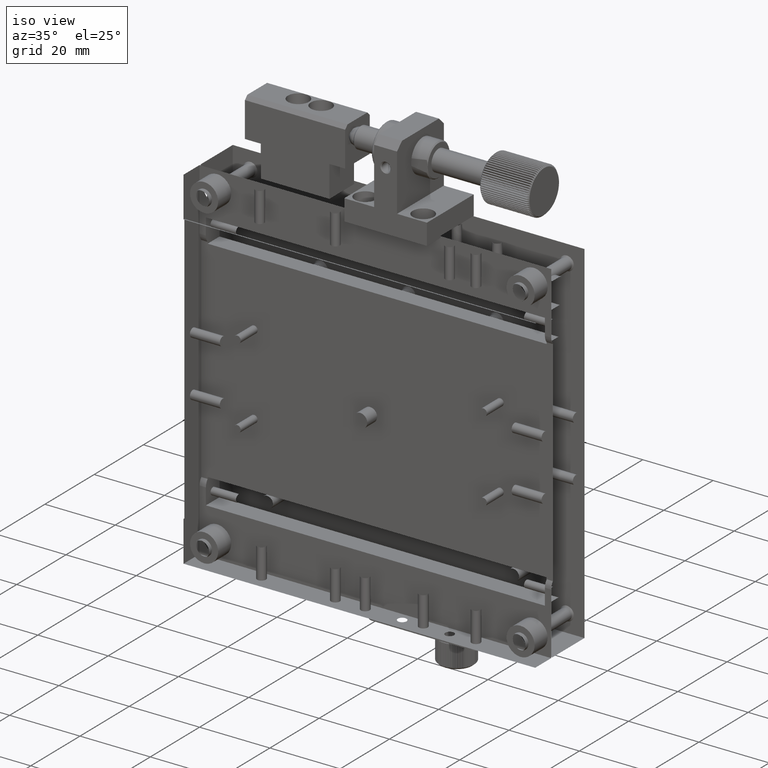
[diagram: clean part render]
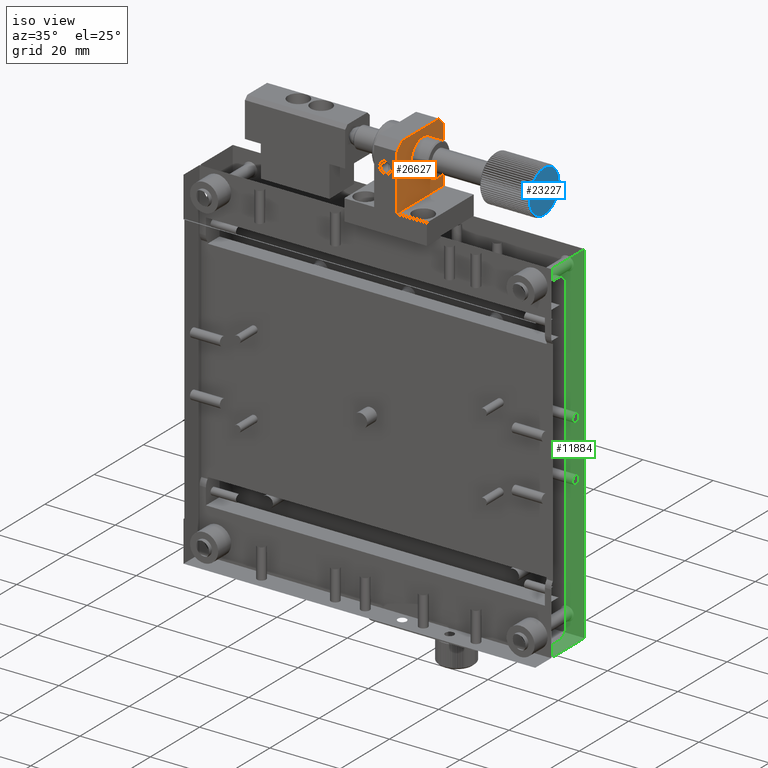
[diagram: same view with three faces highlighted in distinct colors, each labeled with its STEP entity id]
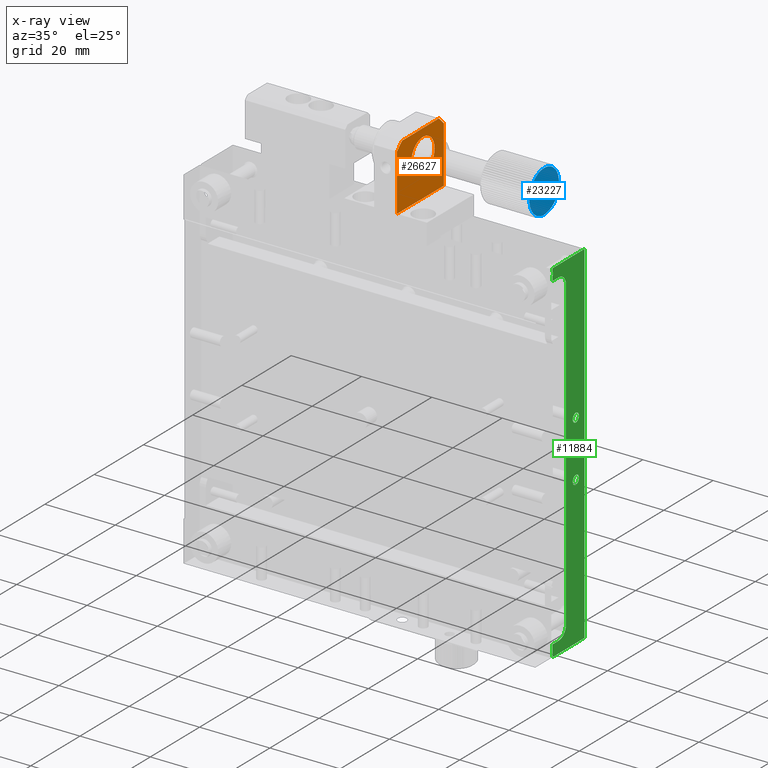
[diagram: x-ray of the same camera — body ghosted, the three highlighted faces saturated]
A machine part, iso view with three faces highlighted in distinct colors.
The next image is the same camera in x-ray (body ghosted, the three faces saturated) — at least one of them is partly hidden behind the body in this view.
Their STEP definitions:

[orange] entity #26627 — the highlighted planar face has unit normal (1, -0, -0).
#34 = CARTESIAN_POINT ( 'NONE',  ( 24.30109935357899431, -14.49094997660293416, 56.00001249999999686 ) ) ;
#87 = DIRECTION ( 'NONE',  ( 6.938893903907222985E-18, 1.000000000000000000, 0.000000000000000000 ) ) ;
#343 = DIRECTION ( 'NONE',  ( -0.000000000000000000, 1.000000000000000000, -1.638234545514789198E-16 ) ) ;
#1276 = EDGE_CURVE ( 'NONE', #4019, #20311, #24944, .T. ) ;
#1442 = EDGE_LOOP ( 'NONE', ( #13809, #19248, #6997, #6136, #5137, #8541 ) ) ;
#1595 = CARTESIAN_POINT ( 'NONE',  ( 24.30109935357899431, -2.205208762464924366, 62.59842126550579877 ) ) ;
#1644 = CARTESIAN_POINT ( 'NONE',  ( 24.30109935357899786, -2.738777931060252246, 71.58677796408096583 ) ) ;
#1766 = EDGE_CURVE ( 'NONE', #16654, #21456, #15143, .T. ) ;
#1783 = CARTESIAN_POINT ( 'NONE',  ( 24.30109935357899786, -6.726220617942591851, 70.88428340780161818 ) ) ;
#1874 = CARTESIAN_POINT ( 'NONE',  ( 24.30109935357899076, -7.778889910720314660, 64.13276290265044111 ) ) ;
#1919 = CARTESIAN_POINT ( 'NONE',  ( 24.30109935357899786, -8.454560753446285659, 68.62528326081564956 ) ) ;
#2007 = CARTESIAN_POINT ( 'NONE',  ( 24.30109935357899431, 0.7590500233970679522, 67.00001249999999686 ) ) ;
#2029 = CARTESIAN_POINT ( 'NONE',  ( 24.30109935357899431, 4.509050023397067619, 74.00001249999999686 ) ) ;
#2051 = CARTESIAN_POINT ( 'NONE',  ( 24.30109935357898365, -3.244180236378222837, 71.70838328069443435 ) ) ;
#2142 = CARTESIAN_POINT ( 'NONE',  ( 24.30109935357900142, -6.316622919414698778, 62.85748479274186451 ) ) ;
#2483 = CARTESIAN_POINT ( 'NONE',  ( 24.30109935357900142, 0.6478815000792480516, 68.18702875508157035 ) ) ;
#2621 = CARTESIAN_POINT ( 'NONE',  ( 24.30109935357898721, 0.3954030258137913312, 68.82286684901956164 ) ) ;
#2739 = VECTOR ( 'NONE', #24065, 1000.000000000000000 ) ;
#2887 = CARTESIAN_POINT ( 'NONE',  ( 24.30109935357899431, 0.7590500233970679522, 67.00001249999999686 ) ) ;
#2955 = CARTESIAN_POINT ( 'NONE',  ( 24.30109935357899431, 4.509050023397064066, 56.00001249999999686 ) ) ;
#3091 = CARTESIAN_POINT ( 'NONE',  ( 24.30109935357899431, -14.49094997660293771, 50.00001249999999686 ) ) ;
#3737 = CARTESIAN_POINT ( 'NONE',  ( 24.30109935357899786, -5.888490481165563395, 62.64252294733113757 ) ) ;
#3765 = VECTOR ( 'NONE', #26523, 999.9999999999998863 ) ;
#3787 = CARTESIAN_POINT ( 'NONE',  ( 24.30109935357899431, -5.813804325624883695, 71.38636550241466239 ) ) ;
#3872 = CARTESIAN_POINT ( 'NONE',  ( 24.30109935357899786, -8.354110594376983556, 65.12166665749165873 ) ) ;
#3921 = CARTESIAN_POINT ( 'NONE',  ( 24.30109935357899076, -8.421231909053146225, 68.71332993948628598 ) ) ;
#4006 = CARTESIAN_POINT ( 'NONE',  ( 24.30109935357899431, 0.5167373827277587095, 65.49849578569082098 ) ) ;
#4019 = VERTEX_POINT ( 'NONE', #14212 ) ;
#4149 = CARTESIAN_POINT ( 'NONE',  ( 24.30109935357898721, -2.168095627580886919, 62.61365949758437921 ) ) ;
#4199 = CARTESIAN_POINT ( 'NONE',  ( 24.30109935357899431, -8.577671207979886248, 68.25229631058071789 ) ) ;
#4289 = CARTESIAN_POINT ( 'NONE',  ( 24.30109935357899786, -7.465530973699629591, 63.75705281837245053 ) ) ;
#4330 = CARTESIAN_POINT ( 'NONE',  ( 24.30109935357899076, -8.414820016321419516, 68.72982604115128424 ) ) ;
#4461 = CARTESIAN_POINT ( 'NONE',  ( 24.30109935357899431, 4.509050023397064066, 56.00001249999999686 ) ) ;
#5036 = CARTESIAN_POINT ( 'NONE',  ( 24.30109935357900142, 0.4185964207362488643, 68.76600717089820591 ) ) ;
#5041 = EDGE_CURVE ( 'NONE', #21456, #16654, #9875, .T. ) ;
#5137 = ORIENTED_EDGE ( 'NONE', *, *, #11466, .F. ) ;
#5507 = CARTESIAN_POINT ( 'NONE',  ( 24.30109935357899431, -8.740949976602930604, 67.00001249999999686 ) ) ;
#5740 = VECTOR ( 'NONE', #12202, 1000.000000000000000 ) ;
#5850 = CARTESIAN_POINT ( 'NONE',  ( 24.30109935357899076, -0.9297773019878718959, 63.36144222960321315 ) ) ;
#5903 = CARTESIAN_POINT ( 'NONE',  ( 24.30109935357899076, -8.011482242748105165, 69.53071182900433200 ) ) ;
#5998 = CARTESIAN_POINT ( 'NONE',  ( 24.30109935357899431, 0.2671901990687071682, 64.88430446257099504 ) ) ;
#6049 = CARTESIAN_POINT ( 'NONE',  ( 24.30109935357899786, -2.093409472055212106, 71.35750205267707713 ) ) ;
#6131 = CARTESIAN_POINT ( 'NONE',  ( 24.30109935357899431, -6.454776716882960841, 62.93817379199252571 ) ) ;
#6136 = ORIENTED_EDGE ( 'NONE', *, *, #10646, .T. ) ;
#6180 = CARTESIAN_POINT ( 'NONE',  ( 24.30109935357899076, -0.8638403388853411746, 70.59036476864787346 ) ) ;
#6275 = CARTESIAN_POINT ( 'NONE',  ( 24.30109935357899076, -5.720763517753861827, 62.57614246028123262 ) ) ;
#6325 = CARTESIAN_POINT ( 'NONE',  ( 24.30109935357899076, -5.178136628817256337, 71.63877649659379188 ) ) ;
#6419 = CARTESIAN_POINT ( 'NONE',  ( 24.30109935357899786, -4.292786265992904582, 62.24997879889021846 ) ) ;
#6468 = CARTESIAN_POINT ( 'NONE',  ( 24.30109935357899786, -7.787464303465196913, 69.87344682687979969 ) ) ;
#6763 = CARTESIAN_POINT ( 'NONE',  ( 24.30109935357899431, -12.49094997660292172, 74.00001249999999686 ) ) ;
#6997 = ORIENTED_EDGE ( 'NONE', *, *, #15396, .F. ) ;
#7001 = ORIENTED_EDGE ( 'NONE', *, *, #5041, .T. ) ;
#7053 = CARTESIAN_POINT ( 'NONE',  ( 24.30109935357899431, 2.509050023397069396, 74.00001249999999686 ) ) ;
#7117 = LINE ( 'NONE', #8975, #3765 ) ;
#7396 = EDGE_CURVE ( 'NONE', #11980, #4019, #13414, .T. ) ;
#8135 = CARTESIAN_POINT ( 'NONE',  ( 24.30109935357899431, -8.175347112087154144, 64.74195843597939870 ) ) ;
#8185 = CARTESIAN_POINT ( 'NONE',  ( 24.30109935357899786, -2.312847025425444070, 71.44376434198532877 ) ) ;
#8277 = CARTESIAN_POINT ( 'NONE',  ( 24.30109935357900142, -5.669052927781810247, 62.55626065801425995 ) ) ;
#8414 = CARTESIAN_POINT ( 'NONE',  ( 24.30109935357899431, -8.629781453285112036, 65.81299624492403666 ) ) ;
#8541 = ORIENTED_EDGE ( 'NONE', *, *, #7396, .T. ) ;
#8555 = CARTESIAN_POINT ( 'NONE',  ( 24.30109935357899076, -1.123700379252592363, 63.21207256588411383 ) ) ;
#8605 = CARTESIAN_POINT ( 'NONE',  ( 24.30109935357899786, -2.365714142361677208, 71.46363709956335697 ) ) ;
#8693 = CARTESIAN_POINT ( 'NONE',  ( 24.30109935357899431, -1.255679335262773533, 63.11574159220073454 ) ) ;
#8975 = CARTESIAN_POINT ( 'NONE',  ( 24.30109935357899431, -14.49094997660293416, 72.00001249999998265 ) ) ;
#9026 = CARTESIAN_POINT ( 'NONE',  ( 24.30109935357899431, 0.07253455209957665462, 69.46506299584375199 ) ) ;
#9081 = PLANE ( 'NONE',  #14998 ) ;
#9567 = CARTESIAN_POINT ( 'NONE',  ( 24.30109935357899431, 2.509050023397069396, 74.00001249999999686 ) ) ;
#9782 = VERTEX_POINT ( 'NONE', #6763 ) ;
#9875 = B_SPLINE_CURVE_WITH_KNOTS ( 'NONE', 3,
 ( #25880, #19377, #19240, #4199, #27728, #1919, #21354, #3921, #4330, #19511, #17104, #12446, #19107, #5903, #6468, #21627, #23759, #12995, #10882, #1783, #10612, #10467, #12866, #23215, #27864, #3787, #21493, #21082, #6325, #14987, #27997, #2051, #1644, #10323, #8605, #8185, #16968, #27590, #6049, #16827, #25473, #14715, #23347, #25604, #6180, #15824, #11584, #24457, #21908, #24183, #9026, #22049, #26151, #22334, #2621, #17669, #5036, #2483, #26295, #13138 ),
 .UNSPECIFIED., .F., .F.,
 ( 4, 1, 1, 1, 1, 2, 2, 1, 2, 2, 2, 1, 2, 2, 1, 1, 1, 2, 2, 2, 1, 1, 1, 1, 2, 2, 1, 2, 2, 2, 1, 2, 2, 1, 1, 1, 2, 2, 4 ),
 ( 0.000000000000000000, 0.06249999999998845368, 0.09374999999998270828, 0.1093749999999784339, 0.1171874999999777262, 0.1210937499999773792, 0.1249999999999770184, 0.1562499999999743261, 0.1718749999999729661, 0.1874999999999716060, 0.2499999999999618083, 0.2812499999999558131, 0.2968749999999527600, 0.3124999999999497069, 0.3437499999999436007, 0.3593749999999399924, 0.3671874999999387712, 0.3710937499999386602, 0.3749999999999385492, 0.4999999999999340528, 0.5624999999999318323, 0.5937499999999303890, 0.6093749999999300559, 0.6171874999999302780, 0.6210937499999303890, 0.6249999999999306111, 0.6562499999999299449, 0.6718749999999290567, 0.6874999999999281686, 0.7499999999999230615, 0.7812499999999196199, 0.7968749999999178435, 0.8124999999999160671, 0.8437499999999148459, 0.8593749999999141798, 0.8671874999999150679, 0.8710937499999167333, 0.8749999999999185096, 1.000000000000000000 ),
 .UNSPECIFIED. ) ;
#10273 = CARTESIAN_POINT ( 'NONE',  ( 24.30109935357900142, -5.704256938117600484, 62.56972642073353796 ) ) ;
#10323 = CARTESIAN_POINT ( 'NONE',  ( 24.30109935357899431, -2.489498458566923311, 71.50772566174137523 ) ) ;
#10415 = CARTESIAN_POINT ( 'NONE',  ( 24.30109935357899431, -0.7479902949748071794, 63.52543150290440366 ) ) ;
#10454 = VERTEX_POINT ( 'NONE', #9567 ) ;
#10467 = CARTESIAN_POINT ( 'NONE',  ( 24.30109935357900142, -6.456000472451855821, 71.06349702869800922 ) ) ;
#10560 = CARTESIAN_POINT ( 'NONE',  ( 24.30109935357899431, 0.5957712547740212639, 65.74772868941755632 ) ) ;
#10612 = CARTESIAN_POINT ( 'NONE',  ( 24.30109935357899786, -6.657294221547608082, 70.93186325308393236 ) ) ;
#10646 = EDGE_CURVE ( 'NONE', #9782, #11860, #7117, .T. ) ;
#10695 = CARTESIAN_POINT ( 'NONE',  ( 24.30109935357899076, -1.324605731658353047, 63.06816174691713428 ) ) ;
#10833 = CARTESIAN_POINT ( 'NONE',  ( 24.30109935357899431, -7.922800729684127852, 64.33366825505235909 ) ) ;
#10882 = CARTESIAN_POINT ( 'NONE',  ( 24.30109935357899431, -6.858199573952486361, 70.78795243411956051 ) ) ;
#11364 = FACE_OUTER_BOUND ( 'NONE', #1442, .T. ) ;
#11466 = EDGE_CURVE ( 'NONE', #11980, #11860, #27037, .T. ) ;
#11584 = CARTESIAN_POINT ( 'NONE',  ( 24.30109935357899786, -0.3523797062065735508, 70.06118517461871420 ) ) ;
#11624 = DIRECTION ( 'NONE',  ( 1.000000000000000000, -6.938893903907222985E-18, -2.631107338828274117E-18 ) ) ;
#11860 = VERTEX_POINT ( 'NONE', #25270 ) ;
#11980 = VERTEX_POINT ( 'NONE', #34 ) ;
#12202 = DIRECTION ( 'NONE',  ( -0.000000000000000000, 1.638234545514789198E-16, 1.000000000000000000 ) ) ;
#12326 = VECTOR ( 'NONE', #87, 1000.000000000000000 ) ;
#12397 = CARTESIAN_POINT ( 'NONE',  ( 24.30109935357899076, -6.106658014043435223, 62.74187232433410344 ) ) ;
#12446 = CARTESIAN_POINT ( 'NONE',  ( 24.30109935357898721, -8.133477683863928220, 69.32568544280789524 ) ) ;
#12528 = CARTESIAN_POINT ( 'NONE',  ( 24.30109935357899431, -8.377302979020058160, 65.17715815098075893 ) ) ;
#12666 = CARTESIAN_POINT ( 'NONE',  ( 24.30109935357899786, -8.054434505306318215, 64.53496200415696649 ) ) ;
#12813 = CARTESIAN_POINT ( 'NONE',  ( 24.30109935357899431, -5.243122022153185569, 62.41324703591645573 ) ) ;
#12866 = CARTESIAN_POINT ( 'NONE',  ( 24.30109935357899076, -6.249004040633912460, 71.18440963547472222 ) ) ;
#12951 = CARTESIAN_POINT ( 'NONE',  ( 24.30109935357899786, 0.7590500233970680632, 66.69809105629980195 ) ) ;
#12995 = CARTESIAN_POINT ( 'NONE',  ( 24.30109935357899431, -7.052122651216992111, 70.63858277040148437 ) ) ;
#13138 = CARTESIAN_POINT ( 'NONE',  ( 24.30109935357899431, 0.7590500233970679522, 67.00001249999999686 ) ) ;
#13414 = LINE ( 'NONE', #4461, #12326 ) ;
#13698 = EDGE_LOOP ( 'NONE', ( #7001, #24680 ) ) ;
#13809 = ORIENTED_EDGE ( 'NONE', *, *, #1276, .T. ) ;
#14212 = CARTESIAN_POINT ( 'NONE',  ( 24.30109935357899431, 4.509050023397064066, 56.00001249999999686 ) ) ;
#14528 = CARTESIAN_POINT ( 'NONE',  ( 24.30109935357899786, -2.224960630614797097, 62.59046399390793880 ) ) ;
#14657 = VECTOR ( 'NONE', #343, 1000.000000000000000 ) ;
#14666 = CARTESIAN_POINT ( 'NONE',  ( 24.30109935357899076, -1.984371444456456413, 62.69331270208144957 ) ) ;
#14715 = CARTESIAN_POINT ( 'NONE',  ( 24.30109935357899786, -1.527123236335950596, 71.06185120801464450 ) ) ;
#14799 = CARTESIAN_POINT ( 'NONE',  ( 24.30109935357899786, 0.3665395760692337634, 65.10247199544392060 ) ) ;
#14987 = CARTESIAN_POINT ( 'NONE',  ( 24.30109935357899076, -4.594622555371324246, 71.74994509778437646 ) ) ;
#14998 = AXIS2_PLACEMENT_3D ( 'NONE', #2955, #11624, #26491 ) ;
#15078 = CARTESIAN_POINT ( 'NONE',  ( 24.30109935357898721, -7.875220884403139721, 64.26474185866034361 ) ) ;
#15143 = B_SPLINE_CURVE_WITH_KNOTS ( 'NONE', 3,
 ( #2007, #12951, #23299, #10560, #4006, #21301, #27680, #23571, #25423, #14799, #5998, #23428, #19465, #21169, #17053, #21575, #10415, #5850, #8555, #8693, #10695, #19329, #19054, #14666, #27948, #4149, #1595, #14528, #23160, #17196, #6419, #25690, #12813, #21445, #27538, #8277, #10273, #6275, #3737, #12397, #2142, #6131, #18911, #16917, #23713, #4289, #25831, #1874, #15078, #10833, #12666, #8135, #16773, #3872, #12528, #19194, #27816, #8414, #20168, #23843 ),
 .UNSPECIFIED., .F., .F.,
 ( 4, 1, 1, 1, 1, 2, 2, 1, 2, 2, 2, 1, 2, 2, 1, 1, 1, 2, 2, 2, 1, 1, 1, 1, 2, 2, 1, 2, 2, 2, 1, 2, 2, 1, 1, 1, 2, 2, 4 ),
 ( 0.000000000000000000, 0.06250000000001201816, 0.09375000000001802725, 0.1093750000000210387, 0.1171875000000225375, 0.1210937500000232869, 0.1250000000000240363, 0.1562500000000325850, 0.1718750000000368594, 0.1875000000000411338, 0.2500000000000560108, 0.2812500000000633937, 0.2968750000000670575, 0.3125000000000707767, 0.3437500000000766609, 0.3593750000000789924, 0.3671875000000801026, 0.3710937500000806022, 0.3750000000000811573, 0.5000000000000665024, 0.5625000000000591749, 0.5937500000000557332, 0.6093750000000541789, 0.6171875000000537348, 0.6210937500000535127, 0.6250000000000531797, 0.6562500000000455191, 0.6718750000000422995, 0.6875000000000390799, 0.7500000000000265343, 0.7812500000000203171, 0.7968750000000172085, 0.8125000000000140998, 0.8437500000000078826, 0.8593750000000047740, 0.8671875000000032196, 0.8710937500000011102, 0.8749999999999988898, 1.000000000000000000 ),
 .UNSPECIFIED. ) ;
#15396 = EDGE_CURVE ( 'NONE', #9782, #10454, #17220, .T. ) ;
#15824 = CARTESIAN_POINT ( 'NONE',  ( 24.30109935357899786, -0.5163689795075768751, 70.24297218163023615 ) ) ;
#16300 = CARTESIAN_POINT ( 'NONE',  ( 24.30109935357899431, 4.509050023397064066, 50.00001249999999686 ) ) ;
#16654 = VERTEX_POINT ( 'NONE', #2887 ) ;
#16773 = CARTESIAN_POINT ( 'NONE',  ( 24.30109935357899786, -8.297649774525766020, 64.99343396786157712 ) ) ;
#16827 = CARTESIAN_POINT ( 'NONE',  ( 24.30109935357900497, -1.875241939188531326, 71.25815267568017930 ) ) ;
#16917 = CARTESIAN_POINT ( 'NONE',  ( 24.30109935357899431, -6.864384303490396633, 63.20349817314226470 ) ) ;
#16968 = CARTESIAN_POINT ( 'NONE',  ( 24.30109935357898721, -2.277643015088973932, 71.43029857926622128 ) ) ;
#17053 = CARTESIAN_POINT ( 'NONE',  ( 24.30109935357899076, -0.1944356497413523288, 64.12657817311531971 ) ) ;
#17104 = CARTESIAN_POINT ( 'NONE',  ( 24.30109935357899076, -8.249090152272442467, 69.11572053743556410 ) ) ;
#17196 = CARTESIAN_POINT ( 'NONE',  ( 24.30109935357899786, -3.387277397822993752, 62.25007990221956078 ) ) ;
#17220 = LINE ( 'NONE', #2029, #14657 ) ;
#17361 = VECTOR ( 'NONE', #20665, 1000.000000000000000 ) ;
#17669 = CARTESIAN_POINT ( 'NONE',  ( 24.30109935357899431, 0.4106412578918376965, 68.78575371413674588 ) ) ;
#18911 = CARTESIAN_POINT ( 'NONE',  ( 24.30109935357900142, -6.521649305605348168, 62.97948023385370675 ) ) ;
#19054 = CARTESIAN_POINT ( 'NONE',  ( 24.30109935357899786, -1.732895912571604580, 62.81561536452154115 ) ) ;
#19107 = CARTESIAN_POINT ( 'NONE',  ( 24.30109935357899076, -8.052788684612238512, 69.46383924027756507 ) ) ;
#19194 = CARTESIAN_POINT ( 'NONE',  ( 24.30109935357899431, -8.392541211097910292, 65.21427128586346100 ) ) ;
#19240 = CARTESIAN_POINT ( 'NONE',  ( 24.30109935357900497, -8.699261780358749974, 67.74693126027547407 ) ) ;
#19248 = ORIENTED_EDGE ( 'NONE', *, *, #24527, .F. ) ;
#19329 = CARTESIAN_POINT ( 'NONE',  ( 24.30109935357899786, -1.525899480753811543, 62.93652797129989551 ) ) ;
#19377 = CARTESIAN_POINT ( 'NONE',  ( 24.30109935357900142, -8.740949976602935934, 67.30193394369889859 ) ) ;
#19465 = CARTESIAN_POINT ( 'NONE',  ( 24.30109935357899786, 0.07088873140744096635, 64.53618575972573979 ) ) ;
#19511 = CARTESIAN_POINT ( 'NONE',  ( 24.30109935357899076, -8.348439529273884219, 68.89755300455982479 ) ) ;
#20168 = CARTESIAN_POINT ( 'NONE',  ( 24.30109935357898721, -8.740949976602930604, 66.39581286839697327 ) ) ;
#20311 = VERTEX_POINT ( 'NONE', #24924 ) ;
#20665 = DIRECTION ( 'NONE',  ( -0.000000000000000000, 1.638234545514789198E-16, 1.000000000000000000 ) ) ;
#21082 = CARTESIAN_POINT ( 'NONE',  ( 24.30109935357899431, -5.756939322590719499, 71.40956100609196255 ) ) ;
#21169 = CARTESIAN_POINT ( 'NONE',  ( 24.30109935357899431, 0.02958228954241580097, 64.46931317099688385 ) ) ;
#21301 = CARTESIAN_POINT ( 'NONE',  ( 24.30109935357899076, 0.4726608002404213971, 65.37474173918381837 ) ) ;
#21354 = CARTESIAN_POINT ( 'NONE',  ( 24.30109935357899786, -8.434693722423666884, 68.67813590817108604 ) ) ;
#21445 = CARTESIAN_POINT ( 'NONE',  ( 24.30109935357898721, -5.492401494643357474, 62.49229933825711925 ) ) ;
#21456 = VERTEX_POINT ( 'NONE', #5507 ) ;
#21493 = CARTESIAN_POINT ( 'NONE',  ( 24.30109935357898721, -5.776691190740888437, 71.40160373449367626 ) ) ;
#21575 = CARTESIAN_POINT ( 'NONE',  ( 24.30109935357899431, -0.4005977079508813432, 63.87290286228287783 ) ) ;
#21627 = CARTESIAN_POINT ( 'NONE',  ( 24.30109935357899431, -7.581302245256122063, 70.12712213771176550 ) ) ;
#21908 = CARTESIAN_POINT ( 'NONE',  ( 24.30109935357899076, -0.1066790688038936757, 69.73528314134198069 ) ) ;
#22049 = CARTESIAN_POINT ( 'NONE',  ( 24.30109935357899786, 0.1934471588797564423, 69.25806656402191663 ) ) ;
#22072 = LINE ( 'NONE', #7053, #2739 ) ;
#22243 = FACE_BOUND ( 'NONE', #13698, .T. ) ;
#22334 = CARTESIAN_POINT ( 'NONE',  ( 24.30109935357899431, 0.3722106411704533824, 68.87835834250890343 ) ) ;
#23160 = CARTESIAN_POINT ( 'NONE',  ( 24.30109935357899431, -2.803763324399629386, 62.36124850341017378 ) ) ;
#23215 = CARTESIAN_POINT ( 'NONE',  ( 24.30109935357899431, -5.997528508749145892, 71.30671229791575172 ) ) ;
#23299 = CARTESIAN_POINT ( 'NONE',  ( 24.30109935357899431, 0.7173618271528856560, 66.25309373972231697 ) ) ;
#23347 = CARTESIAN_POINT ( 'NONE',  ( 24.30109935357900142, -1.460250647596282869, 71.02054476614274847 ) ) ;
#23428 = CARTESIAN_POINT ( 'NONE',  ( 24.30109935357899431, 0.1515777306597396457, 64.67433955719725702 ) ) ;
#23571 = CARTESIAN_POINT ( 'NONE',  ( 24.30109935357899786, 0.4393319558472855713, 65.28669506051355143 ) ) ;
#23713 = CARTESIAN_POINT ( 'NONE',  ( 24.30109935357900497, -7.118059614317838957, 63.40966023134682672 ) ) ;
#23759 = CARTESIAN_POINT ( 'NONE',  ( 24.30109935357899076, -7.233909658230486706, 70.47459349709829723 ) ) ;
#23843 = CARTESIAN_POINT ( 'NONE',  ( 24.30109935357899431, -8.740949976602930604, 67.00001249999999686 ) ) ;
#24065 = DIRECTION ( 'NONE',  ( -0.000000000000000000, 0.7071067811865462405, -0.7071067811865489050 ) ) ;
#24183 = CARTESIAN_POINT ( 'NONE',  ( 24.30109935357899786, -0.05909922352129505507, 69.66635674494725095 ) ) ;
#24457 = CARTESIAN_POINT ( 'NONE',  ( 24.30109935357899076, -0.2030100424873899079, 69.86726209735320481 ) ) ;
#24527 = EDGE_CURVE ( 'NONE', #10454, #20311, #22072, .T. ) ;
#24680 = ORIENTED_EDGE ( 'NONE', *, *, #1766, .T. ) ;
#24924 = CARTESIAN_POINT ( 'NONE',  ( 24.30109935357899431, 4.509050023397068507, 72.00001249999998265 ) ) ;
#24944 = LINE ( 'NONE', #16300, #5740 ) ;
#25270 = CARTESIAN_POINT ( 'NONE',  ( 24.30109935357899431, -14.49094997660293416, 72.00001249999998265 ) ) ;
#25423 = CARTESIAN_POINT ( 'NONE',  ( 24.30109935357899431, 0.4329200631154078716, 65.27019895884825473 ) ) ;
#25473 = CARTESIAN_POINT ( 'NONE',  ( 24.30109935357899786, -1.665277033811671137, 71.14254020726939132 ) ) ;
#25604 = CARTESIAN_POINT ( 'NONE',  ( 24.30109935357898721, -1.117515649732389038, 70.79652682687199672 ) ) ;
#25690 = CARTESIAN_POINT ( 'NONE',  ( 24.30109935357899431, -4.737719716837743178, 62.29164171930207061 ) ) ;
#25831 = CARTESIAN_POINT ( 'NONE',  ( 24.30109935357899431, -7.629520247001639000, 63.93883982538594069 ) ) ;
#25880 = CARTESIAN_POINT ( 'NONE',  ( 24.30109935357899431, -8.740949976602930604, 67.00001249999999686 ) ) ;
#26151 = CARTESIAN_POINT ( 'NONE',  ( 24.30109935357900142, 0.3157498213187573399, 69.00659103213942558 ) ) ;
#26295 = CARTESIAN_POINT ( 'NONE',  ( 24.30109935357900142, 0.7590500233970680632, 67.60421213160860532 ) ) ;
#26491 = DIRECTION ( 'NONE',  ( 6.938893903907222985E-18, 1.000000000000000000, 0.000000000000000000 ) ) ;
#26523 = DIRECTION ( 'NONE',  ( -0.000000000000000000, -0.7071067811865483499, -0.7071067811865467956 ) ) ;
#26627 = ADVANCED_FACE ( 'NONE', ( #11364, #22243 ), #9081, .T. ) ;
#27037 = LINE ( 'NONE', #3091, #17361 ) ;
#27538 = CARTESIAN_POINT ( 'NONE',  ( 24.30109935357899431, -5.616185810846554105, 62.53638790043583384 ) ) ;
#27590 = CARTESIAN_POINT ( 'NONE',  ( 24.30109935357899431, -2.261136435450138649, 71.42388253971775214 ) ) ;
#27680 = CARTESIAN_POINT ( 'NONE',  ( 24.30109935357899431, 0.4527937692178028439, 65.32188909182860925 ) ) ;
#27728 = CARTESIAN_POINT ( 'NONE',  ( 24.30109935357899786, -8.498637335933624470, 68.50152921430823483 ) ) ;
#27816 = CARTESIAN_POINT ( 'NONE',  ( 24.30109935357900142, -8.400496373942109685, 65.23401782910168833 ) ) ;
#27864 = CARTESIAN_POINT ( 'NONE',  ( 24.30109935357899076, -5.869295819115799340, 71.36317311776991801 ) ) ;
#27948 = CARTESIAN_POINT ( 'NONE',  ( 24.30109935357899431, -2.112604134089905106, 62.63685188222844857 ) ) ;
#27997 = CARTESIAN_POINT ( 'NONE',  ( 24.30109935357899076, -3.689113687218734228, 71.75004620110779285 ) ) ;

[blue] entity #23227 — the highlighted planar face has unit normal (1, -0, 0).
#342 = VERTEX_POINT ( 'NONE', #25636 ) ;
#391 = DIRECTION ( 'NONE',  ( 0.000000000000000000, -1.000000000000000000, 0.000000000000000000 ) ) ;
#450 = DIRECTION ( 'NONE',  ( 0.000000000000000000, -1.000000000000000000, 0.000000000000000000 ) ) ;
#536 = VERTEX_POINT ( 'NONE', #13461 ) ;
#615 = CARTESIAN_POINT ( 'NONE',  ( 58.80109935357899076, -7.296331865293826269, 72.00745202229491326 ) ) ;
#621 = EDGE_CURVE ( 'NONE', #21362, #16651, #17503, .T. ) ;
#855 = DIRECTION ( 'NONE',  ( -1.000000000000000000, -5.337610695355355849E-16, -0.000000000000000000 ) ) ;
#859 = AXIS2_PLACEMENT_3D ( 'NONE', #21067, #7471, #20933 ) ;
#866 = EDGE_CURVE ( 'NONE', #11671, #21362, #4816, .T. ) ;
#898 = CARTESIAN_POINT ( 'NONE',  ( 58.80109935357899076, -9.396763183981908796, 69.60331493468821407 ) ) ;
#972 = VERTEX_POINT ( 'NONE', #10397 ) ;
#995 = AXIS2_PLACEMENT_3D ( 'NONE', #7443, #5717, #3606 ) ;
#1017 = ORIENTED_EDGE ( 'NONE', *, *, #21022, .F. ) ;
#1156 = ORIENTED_EDGE ( 'NONE', *, *, #15906, .F. ) ;
#1180 = DIRECTION ( 'NONE',  ( 0.000000000000000000, -1.000000000000000000, 0.000000000000000000 ) ) ;
#1207 = CIRCLE ( 'NONE', #8473, 5.999999999960551555 ) ;
#1221 = ORIENTED_EDGE ( 'NONE', *, *, #23359, .F. ) ;
#1307 = DIRECTION ( 'NONE',  ( -1.000000000000000000, -5.337610695355355849E-16, -0.000000000000000000 ) ) ;
#1392 = DIRECTION ( 'NONE',  ( -1.000000000000000000, -5.337610695355355849E-16, -0.000000000000000000 ) ) ;
#1400 = AXIS2_PLACEMENT_3D ( 'NONE', #11296, #21895, #6728 ) ;
#1428 = CIRCLE ( 'NONE', #8669, 5.999999999960551555 ) ;
#1458 = CIRCLE ( 'NONE', #25000, 5.999999999960551555 ) ;
#1509 = DIRECTION ( 'NONE',  ( -1.000000000000000000, -5.337610695355355849E-16, -0.000000000000000000 ) ) ;
#1559 = DIRECTION ( 'NONE',  ( -1.000000000000000000, -5.337610695355355849E-16, -0.000000000000000000 ) ) ;
#1563 = CARTESIAN_POINT ( 'NONE',  ( 58.80109935357899076, -4.796349571503571774, 72.94571107056854942 ) ) ;
#1576 = VERTEX_POINT ( 'NONE', #26563 ) ;
#1577 = EDGE_CURVE ( 'NONE', #20383, #4673, #23390, .T. ) ;
#1585 = DIRECTION ( 'NONE',  ( 0.000000000000000000, 0.000000000000000000, -1.000000000000000000 ) ) ;
#1639 = CARTESIAN_POINT ( 'NONE',  ( 58.80109935357899076, -5.326075580332060078, 72.84957997305249933 ) ) ;
#1643 = EDGE_CURVE ( 'NONE', #27579, #10006, #1207, .T. ) ;
#1647 = CARTESIAN_POINT ( 'NONE',  ( 58.80109935355903872, -3.990949976602919946, 67.00001250000002528 ) ) ;
#1716 = CARTESIAN_POINT ( 'NONE',  ( 58.80109935355903872, -3.990949976602919946, 67.00001250000002528 ) ) ;
#1779 = AXIS2_PLACEMENT_3D ( 'NONE', #10127, #16759, #1585 ) ;
#1821 = ORIENTED_EDGE ( 'NONE', *, *, #21922, .F. ) ;
#1822 = EDGE_CURVE ( 'NONE', #342, #15814, #5764, .T. ) ;
#1854 = DIRECTION ( 'NONE',  ( -1.000000000000000000, -5.337610695355355849E-16, -0.000000000000000000 ) ) ;
#1929 = EDGE_CURVE ( 'NONE', #26214, #342, #20700, .T. ) ;
#1965 = AXIS2_PLACEMENT_3D ( 'NONE', #23079, #12731, #25614 ) ;
#2048 = DIRECTION ( 'NONE',  ( 0.000000000000000000, -1.000000000000000000, 0.000000000000000000 ) ) ;
#2130 = CARTESIAN_POINT ( 'NONE',  ( 58.80109935355903872, -3.990949976602919946, 67.00001250000002528 ) ) ;
#2153 = ORIENTED_EDGE ( 'NONE', *, *, #6988, .F. ) ;
#2198 = CIRCLE ( 'NONE', #17608, 5.999999999960551555 ) ;
#2221 = CARTESIAN_POINT ( 'NONE',  ( 58.80109935355903872, -3.990949976602919946, 67.00001250000002528 ) ) ;
#2255 = AXIS2_PLACEMENT_3D ( 'NONE', #19845, #8926, #15597 ) ;
#2274 = DIRECTION ( 'NONE',  ( 0.000000000000000000, -1.000000000000000000, 0.000000000000000000 ) ) ;
#2335 = VERTEX_POINT ( 'NONE', #14467 ) ;
#2374 = AXIS2_PLACEMENT_3D ( 'NONE', #9604, #7050, #3349 ) ;
#2417 = DIRECTION ( 'NONE',  ( -1.000000000000000000, -5.337610695355355849E-16, -0.000000000000000000 ) ) ;
#2467 = DIRECTION ( 'NONE',  ( 0.000000000000000000, -1.000000000000000000, 0.000000000000000000 ) ) ;
#2561 = EDGE_CURVE ( 'NONE', #6083, #23242, #22987, .T. ) ;
#2654 = CARTESIAN_POINT ( 'NONE',  ( 58.80109935355903872, -3.990949976602919946, 67.00001250000002528 ) ) ;
#2685 = DIRECTION ( 'NONE',  ( -1.000000000000000000, -5.337610695355355849E-16, -0.000000000000000000 ) ) ;
#2696 = DIRECTION ( 'NONE',  ( 0.000000000000000000, -1.000000000000000000, 0.000000000000000000 ) ) ;
#2716 = CIRCLE ( 'NONE', #4982, 5.999999999960551555 ) ;
#2814 = DIRECTION ( 'NONE',  ( 0.000000000000000000, -1.000000000000000000, 0.000000000000000000 ) ) ;
#2821 = DIRECTION ( 'NONE',  ( -1.000000000000000000, -5.337610695355355849E-16, -0.000000000000000000 ) ) ;
#2858 = DIRECTION ( 'NONE',  ( -1.000000000000000000, -5.337610695355355849E-16, -0.000000000000000000 ) ) ;
#2885 = DIRECTION ( 'NONE',  ( 0.000000000000000000, -1.000000000000000000, 0.000000000000000000 ) ) ;
#2893 = CIRCLE ( 'NONE', #18305, 5.999999999960551555 ) ;
#2989 = DIRECTION ( 'NONE',  ( -1.000000000000000000, -5.337610695355355849E-16, -0.000000000000000000 ) ) ;
#3059 = VERTEX_POINT ( 'NONE', #17595 ) ;
#3099 = CIRCLE ( 'NONE', #23486, 5.999999999960551555 ) ;
#3110 = EDGE_CURVE ( 'NONE', #24792, #21917, #15337, .T. ) ;
#3228 = EDGE_CURVE ( 'NONE', #27028, #19871, #24366, .T. ) ;
#3255 = ORIENTED_EDGE ( 'NONE', *, *, #17226, .F. ) ;
#3302 = CARTESIAN_POINT ( 'NONE',  ( 58.80109935357899076, 1.984895787329225669, 67.53784835341708970 ) ) ;
#3349 = DIRECTION ( 'NONE',  ( 0.000000000000000000, -1.000000000000000000, 0.000000000000000000 ) ) ;
#3389 = DIRECTION ( 'NONE',  ( -1.000000000000000000, -5.337610695355355849E-16, -0.000000000000000000 ) ) ;
#3407 = DIRECTION ( 'NONE',  ( -1.000000000000000000, -5.337610695355355849E-16, -0.000000000000000000 ) ) ;
#3435 = DIRECTION ( 'NONE',  ( 0.000000000000000000, -1.000000000000000000, 0.000000000000000000 ) ) ;
#3519 = EDGE_LOOP ( 'NONE', ( #9719, #7382, #10213, #14850, #7969, #20545, #1821, #21665, #22746, #20685, #19069, #3255, #18848, #9505, #7671, #26760, #1156, #14424, #22153, #3642, #15578, #23316, #6123, #16860, #18400, #1221, #19471, #22854, #8316, #12949, #5409, #27321, #13948, #10072, #19555, #16995, #2153, #17346, #15094, #18315, #26481, #12607, #24430, #14083, #17274, #19690, #26475, #26139, #19043, #21940, #20120, #24415, #17560, #6035, #16261, #8843, #1017, #13392, #24484, #20297, #20309, #11071, #19032, #21385, #19146, #6634, #12123, #20509, #26993, #24874 ) ) ;
#3587 = CIRCLE ( 'NONE', #24402, 5.999999999960551555 ) ;
#3606 = DIRECTION ( 'NONE',  ( 0.000000000000000000, -1.000000000000000000, 0.000000000000000000 ) ) ;
#3642 = ORIENTED_EDGE ( 'NONE', *, *, #23402, .F. ) ;
#3782 = DIRECTION ( 'NONE',  ( -1.000000000000000000, -5.337610695355355849E-16, -0.000000000000000000 ) ) ;
#3797 = CIRCLE ( 'NONE', #23706, 5.999999999960551555 ) ;
#3825 = EDGE_CURVE ( 'NONE', #27550, #6467, #5816, .T. ) ;
#3944 = EDGE_CURVE ( 'NONE', #19865, #6462, #3587, .T. ) ;
#4049 = CARTESIAN_POINT ( 'NONE',  ( 58.80109935355903872, -3.990949976602919946, 67.00001250000002528 ) ) ;
#4051 = CIRCLE ( 'NONE', #5398, 5.999999999960551555 ) ;
#4106 = CIRCLE ( 'NONE', #19966, 5.999999999960551555 ) ;
#4110 = AXIS2_PLACEMENT_3D ( 'NONE', #5810, #1559, #5530 ) ;
#4139 = EDGE_CURVE ( 'NONE', #24029, #972, #4940, .T. ) ;
#4162 = CIRCLE ( 'NONE', #8264, 5.999999999960551555 ) ;
#4241 = CARTESIAN_POINT ( 'NONE',  ( 58.80109935355903872, -3.990949976602919946, 67.00001250000002528 ) ) ;
#4342 = CARTESIAN_POINT ( 'NONE',  ( 58.80109935355903872, -3.990949976602919946, 67.00001250000002528 ) ) ;
#4410 = EDGE_CURVE ( 'NONE', #13388, #18647, #22138, .T. ) ;
#4437 = DIRECTION ( 'NONE',  ( 0.000000000000000000, -1.000000000000000000, 0.000000000000000000 ) ) ;
#4454 = CIRCLE ( 'NONE', #9462, 5.999999999960551555 ) ;
#4483 = AXIS2_PLACEMENT_3D ( 'NONE', #22550, #2858, #11661 ) ;
#4507 = EDGE_CURVE ( 'NONE', #3059, #10878, #14472, .T. ) ;
#4592 = CARTESIAN_POINT ( 'NONE',  ( 58.80109935355903872, -3.990949976602919946, 67.00001250000002528 ) ) ;
#4601 = DIRECTION ( 'NONE',  ( 0.000000000000000000, -1.000000000000000000, 0.000000000000000000 ) ) ;
#4673 = VERTEX_POINT ( 'NONE', #23661 ) ;
#4780 = DIRECTION ( 'NONE',  ( 0.000000000000000000, -1.000000000000000000, 0.000000000000000000 ) ) ;
#4816 = CIRCLE ( 'NONE', #22478, 5.999999999960551555 ) ;
#4843 = CARTESIAN_POINT ( 'NONE',  ( 58.80109935355903872, -3.990949976602919946, 67.00001250000002528 ) ) ;
#4904 = DIRECTION ( 'NONE',  ( -1.000000000000000000, -5.337610695355355849E-16, -0.000000000000000000 ) ) ;
#4913 = CIRCLE ( 'NONE', #8112, 5.999999999960551555 ) ;
#4940 = CIRCLE ( 'NONE', #4483, 5.999999999960551555 ) ;
#4967 = CIRCLE ( 'NONE', #19916, 5.999999999960551555 ) ;
#4982 = AXIS2_PLACEMENT_3D ( 'NONE', #25233, #3407, #18580 ) ;
#5021 = AXIS2_PLACEMENT_3D ( 'NONE', #13408, #26136, #9433 ) ;
#5123 = DIRECTION ( 'NONE',  ( -1.000000000000000000, -5.337610695355355849E-16, -0.000000000000000000 ) ) ;
#5306 = VERTEX_POINT ( 'NONE', #615 ) ;
#5327 = CARTESIAN_POINT ( 'NONE',  ( 58.80109935355903872, -3.990949976602919946, 67.00001250000002528 ) ) ;
#5342 = CIRCLE ( 'NONE', #11699, 5.999999999960551555 ) ;
#5398 = AXIS2_PLACEMENT_3D ( 'NONE', #2130, #6680, #2274 ) ;
#5409 = ORIENTED_EDGE ( 'NONE', *, *, #24507, .F. ) ;
#5467 = CIRCLE ( 'NONE', #21312, 5.999999999960551555 ) ;
#5530 = DIRECTION ( 'NONE',  ( 0.000000000000000000, -1.000000000000000000, 0.000000000000000000 ) ) ;
#5540 = CARTESIAN_POINT ( 'NONE',  ( 58.80109935357899076, -8.509378772594896390, 70.94764485561233869 ) ) ;
#5596 = CARTESIAN_POINT ( 'NONE',  ( 58.80109935355903872, -3.990949976602919946, 67.00001250000002528 ) ) ;
#5677 = DIRECTION ( 'NONE',  ( 0.000000000000000000, -1.000000000000000000, 0.000000000000000000 ) ) ;
#5697 = FACE_OUTER_BOUND ( 'NONE', #3519, .T. ) ;
#5705 = CARTESIAN_POINT ( 'NONE',  ( 58.80109935357899076, 0.1554259172910008036, 71.33678168293586452 ) ) ;
#5717 = DIRECTION ( 'NONE',  ( -1.000000000000000000, -5.337610695355355849E-16, -0.000000000000000000 ) ) ;
#5729 = AXIS2_PLACEMENT_3D ( 'NONE', #16680, #3782, #12442 ) ;
#5732 = EDGE_CURVE ( 'NONE', #9810, #8287, #4106, .T. ) ;
#5764 = CIRCLE ( 'NONE', #15292, 5.999999999960551555 ) ;
#5810 = CARTESIAN_POINT ( 'NONE',  ( 58.80109935355903872, -3.990949976602919946, 67.00001250000002528 ) ) ;
#5816 = CIRCLE ( 'NONE', #9913, 5.999999999960551555 ) ;
#5961 = CARTESIAN_POINT ( 'NONE',  ( 58.80109935355903872, -3.990949976602919946, 67.00001250000002528 ) ) ;
#6021 = CARTESIAN_POINT ( 'NONE',  ( 58.80109935357899076, -4.796349571503489173, 61.05431392943150115 ) ) ;
#6035 = ORIENTED_EDGE ( 'NONE', *, *, #11647, .F. ) ;
#6083 = VERTEX_POINT ( 'NONE', #12297 ) ;
#6123 = ORIENTED_EDGE ( 'NONE', *, *, #19589, .F. ) ;
#6126 = DIRECTION ( 'NONE',  ( 0.000000000000000000, -1.000000000000000000, 0.000000000000000000 ) ) ;
#6148 = CARTESIAN_POINT ( 'NONE',  ( 58.80109935355903872, -3.990949976602919946, 67.00001250000002528 ) ) ;
#6357 = VERTEX_POINT ( 'NONE', #18595 ) ;
#6440 = VERTEX_POINT ( 'NONE', #5540 ) ;
#6447 = CIRCLE ( 'NONE', #13266, 5.999999999960551555 ) ;
#6462 = VERTEX_POINT ( 'NONE', #17447 ) ;
#6467 = VERTEX_POINT ( 'NONE', #21685 ) ;
#6590 = VERTEX_POINT ( 'NONE', #11373 ) ;
#6634 = ORIENTED_EDGE ( 'NONE', *, *, #5732, .F. ) ;
#6679 = DIRECTION ( 'NONE',  ( -1.000000000000000000, -5.337610695355355849E-16, -0.000000000000000000 ) ) ;
#6680 = DIRECTION ( 'NONE',  ( -1.000000000000000000, -5.337610695355355849E-16, -0.000000000000000000 ) ) ;
#6715 = CIRCLE ( 'NONE', #24817, 5.999999999960551555 ) ;
#6728 = DIRECTION ( 'NONE',  ( 0.000000000000000000, -1.000000000000000000, 0.000000000000000000 ) ) ;
#6823 = DIRECTION ( 'NONE',  ( -1.000000000000000000, -5.337610695355355849E-16, -0.000000000000000000 ) ) ;
#6825 = EDGE_CURVE ( 'NONE', #21917, #17163, #8227, .T. ) ;
#6951 = CARTESIAN_POINT ( 'NONE',  ( 58.80109935355903872, -3.990949976602919946, 67.00001250000002528 ) ) ;
#6988 = EDGE_CURVE ( 'NONE', #17809, #14318, #1428, .T. ) ;
#7002 = CARTESIAN_POINT ( 'NONE',  ( 58.80109935357899076, -8.845051942820710167, 70.52672401373165201 ) ) ;
#7017 = CARTESIAN_POINT ( 'NONE',  ( 58.80109935355903872, -3.990949976602919946, 67.00001250000002528 ) ) ;
#7050 = DIRECTION ( 'NONE',  ( -1.000000000000000000, -5.337610695355355849E-16, -0.000000000000000000 ) ) ;
#7062 = CARTESIAN_POINT ( 'NONE',  ( 58.80109935355903872, -3.990949976602919946, 67.00001250000002528 ) ) ;
#7078 = AXIS2_PLACEMENT_3D ( 'NONE', #17016, #2821, #22510 ) ;
#7130 = AXIS2_PLACEMENT_3D ( 'NONE', #9812, #22978, #24967 ) ;
#7133 = VERTEX_POINT ( 'NONE', #9613 ) ;
#7147 = CARTESIAN_POINT ( 'NONE',  ( 58.80109935357899076, 1.792827187534172584, 68.59623357338959693 ) ) ;
#7159 = DIRECTION ( 'NONE',  ( 0.000000000000000000, -1.000000000000000000, 0.000000000000000000 ) ) ;
#7218 = EDGE_CURVE ( 'NONE', #22097, #16120, #22654, .T. ) ;
#7296 = CIRCLE ( 'NONE', #4110, 5.999999999960551555 ) ;
#7298 = DIRECTION ( 'NONE',  ( -1.000000000000000000, -5.337610695355355849E-16, -0.000000000000000000 ) ) ;
#7333 = CARTESIAN_POINT ( 'NONE',  ( 58.80109935357899076, -2.136848010365357986, 61.29367340226663430 ) ) ;
#7382 = ORIENTED_EDGE ( 'NONE', *, *, #9924, .F. ) ;
#7443 = CARTESIAN_POINT ( 'NONE',  ( 58.80109935355903872, -3.990949976602919946, 67.00001250000002528 ) ) ;
#7471 = DIRECTION ( 'NONE',  ( -1.000000000000000000, -5.337610695355355849E-16, -0.000000000000000000 ) ) ;
#7560 = DIRECTION ( 'NONE',  ( 0.000000000000000000, -1.000000000000000000, 0.000000000000000000 ) ) ;
#7561 = CIRCLE ( 'NONE', #10312, 5.999999999960551555 ) ;
#7606 = CARTESIAN_POINT ( 'NONE',  ( 58.80109935357899076, -2.655824372873816230, 72.84957997305251354 ) ) ;
#7671 = ORIENTED_EDGE ( 'NONE', *, *, #23683, .F. ) ;
#7701 = CARTESIAN_POINT ( 'NONE',  ( 58.80109935355903872, -3.990949976602919946, 67.00001250000002528 ) ) ;
#7835 = VERTEX_POINT ( 'NONE', #12051 ) ;
#7875 = CIRCLE ( 'NONE', #25069, 5.999999999960551555 ) ;
#7931 = AXIS2_PLACEMENT_3D ( 'NONE', #10541, #1854, #19173 ) ;
#7969 = ORIENTED_EDGE ( 'NONE', *, *, #25696, .F. ) ;
#8099 = VERTEX_POINT ( 'NONE', #14255 ) ;
#8112 = AXIS2_PLACEMENT_3D ( 'NONE', #6148, #15231, #26118 ) ;
#8132 = CARTESIAN_POINT ( 'NONE',  ( 58.80109935357899076, -1.632799786694817623, 61.48284586472762214 ) ) ;
#8149 = EDGE_CURVE ( 'NONE', #20723, #27550, #25390, .T. ) ;
#8227 = CIRCLE ( 'NONE', #12764, 5.999999999960551555 ) ;
#8264 = AXIS2_PLACEMENT_3D ( 'NONE', #9524, #2989, #22281 ) ;
#8271 = AXIS2_PLACEMENT_3D ( 'NONE', #10580, #12684, #4437 ) ;
#8287 = VERTEX_POINT ( 'NONE', #8832 ) ;
#8316 = ORIENTED_EDGE ( 'NONE', *, *, #19683, .F. ) ;
#8320 = DIRECTION ( 'NONE',  ( -1.000000000000000000, -5.337610695355355849E-16, -0.000000000000000000 ) ) ;
#8356 = DIRECTION ( 'NONE',  ( 0.000000000000000000, -1.000000000000000000, 0.000000000000000000 ) ) ;
#8399 = DIRECTION ( 'NONE',  ( 0.000000000000000000, -1.000000000000000000, 0.000000000000000000 ) ) ;
#8473 = AXIS2_PLACEMENT_3D ( 'NONE', #26135, #24023, #2467 ) ;
#8664 = DIRECTION ( 'NONE',  ( -1.000000000000000000, -5.337610695355355849E-16, -0.000000000000000000 ) ) ;
#8669 = AXIS2_PLACEMENT_3D ( 'NONE', #2654, #11341, #24487 ) ;
#8788 = EDGE_CURVE ( 'NONE', #8875, #1576, #24505, .T. ) ;
#8832 = CARTESIAN_POINT ( 'NONE',  ( 58.80109935357899076, 1.159742784974451713, 63.92261683558489693 ) ) ;
#8843 = ORIENTED_EDGE ( 'NONE', *, *, #16526, .F. ) ;
#8844 = CARTESIAN_POINT ( 'NONE',  ( 58.80109935357899076, -6.349100166510898369, 61.48284586472757240 ) ) ;
#8875 = VERTEX_POINT ( 'NONE', #15838 ) ;
#8926 = DIRECTION ( 'NONE',  ( -1.000000000000000000, -5.337610695355355849E-16, -0.000000000000000000 ) ) ;
#9047 = CIRCLE ( 'NONE', #23083, 5.999999999960551555 ) ;
#9237 = DIRECTION ( 'NONE',  ( 0.000000000000000000, -1.000000000000000000, 0.000000000000000000 ) ) ;
#9256 = CIRCLE ( 'NONE', #25077, 5.999999999960551555 ) ;
#9266 = DIRECTION ( 'NONE',  ( 0.000000000000000000, -1.000000000000000000, 0.000000000000000000 ) ) ;
#9339 = VERTEX_POINT ( 'NONE', #22732 ) ;
#9382 = CARTESIAN_POINT ( 'NONE',  ( 58.80109935355903872, -3.990949976602919946, 67.00001250000002528 ) ) ;
#9417 = CARTESIAN_POINT ( 'NONE',  ( 58.80109935357899076, -3.721760994501527087, 61.00605410079155178 ) ) ;
#9433 = DIRECTION ( 'NONE',  ( 0.000000000000000000, -1.000000000000000000, 0.000000000000000000 ) ) ;
#9462 = AXIS2_PLACEMENT_3D ( 'NONE', #26067, #20133, #26493 ) ;
#9492 = EDGE_CURVE ( 'NONE', #15814, #10730, #18217, .T. ) ;
#9505 = ORIENTED_EDGE ( 'NONE', *, *, #4410, .F. ) ;
#9506 = EDGE_CURVE ( 'NONE', #21105, #23735, #4162, .T. ) ;
#9524 = CARTESIAN_POINT ( 'NONE',  ( 58.80109935355903872, -3.990949976602919946, 67.00001250000002528 ) ) ;
#9557 = CARTESIAN_POINT ( 'NONE',  ( 58.80109935357899076, -5.845051942840441939, 72.70635159773343048 ) ) ;
#9604 = CARTESIAN_POINT ( 'NONE',  ( 58.80109935355903872, -3.990949976602919946, 67.00001250000002528 ) ) ;
#9613 = CARTESIAN_POINT ( 'NONE',  ( 58.80109935357899076, -6.349100166510981857, 72.51717913527244264 ) ) ;
#9691 = CIRCLE ( 'NONE', #21437, 5.999999999960551555 ) ;
#9719 = ORIENTED_EDGE ( 'NONE', *, *, #23913, .F. ) ;
#9810 = VERTEX_POINT ( 'NONE', #15424 ) ;
#9812 = CARTESIAN_POINT ( 'NONE',  ( 58.80109935355903872, -3.990949976602919946, 67.00001250000002528 ) ) ;
#9850 = DIRECTION ( 'NONE',  ( -1.000000000000000000, -5.337610695355355849E-16, -0.000000000000000000 ) ) ;
#9913 = AXIS2_PLACEMENT_3D ( 'NONE', #10324, #16685, #25331 ) ;
#9917 = CARTESIAN_POINT ( 'NONE',  ( 58.80109935355903872, -3.990949976602919946, 67.00001250000002528 ) ) ;
#9922 = EDGE_CURVE ( 'NONE', #1576, #25158, #22770, .T. ) ;
#9924 = EDGE_CURVE ( 'NONE', #16651, #17024, #6447, .T. ) ;
#9933 = DIRECTION ( 'NONE',  ( 0.000000000000000000, -1.000000000000000000, 0.000000000000000000 ) ) ;
#9983 = CIRCLE ( 'NONE', #2255, 5.999999999960551555 ) ;
#10006 = VERTEX_POINT ( 'NONE', #7333 ) ;
#10058 = CARTESIAN_POINT ( 'NONE',  ( 58.80109935357899076, -9.774727140740024467, 68.59623357338956851 ) ) ;
#10067 = CIRCLE ( 'NONE', #995, 5.999999999960551555 ) ;
#10072 = ORIENTED_EDGE ( 'NONE', *, *, #18125, .F. ) ;
#10104 = CIRCLE ( 'NONE', #11923, 5.999999999960551555 ) ;
#10127 = CARTESIAN_POINT ( 'NONE',  ( 58.80109935357899076, -3.990949976602919946, 67.00001250000002528 ) ) ;
#10188 = DIRECTION ( 'NONE',  ( 0.000000000000000000, -1.000000000000000000, 0.000000000000000000 ) ) ;
#10213 = ORIENTED_EDGE ( 'NONE', *, *, #621, .F. ) ;
#10256 = CARTESIAN_POINT ( 'NONE',  ( 58.80109935357899076, -8.137325870496862734, 71.33678168293585031 ) ) ;
#10312 = AXIS2_PLACEMENT_3D ( 'NONE', #4241, #14370, #22997 ) ;
#10324 = CARTESIAN_POINT ( 'NONE',  ( 58.80109935355903872, -3.990949976602919946, 67.00001250000002528 ) ) ;
#10342 = DIRECTION ( 'NONE',  ( 0.000000000000000000, -1.000000000000000000, 0.000000000000000000 ) ) ;
#10397 = CARTESIAN_POINT ( 'NONE',  ( 58.80109935357899076, -9.608359200404425593, 69.10826144447418073 ) ) ;
#10500 = EDGE_CURVE ( 'NONE', #16546, #19692, #27749, .T. ) ;
#10541 = CARTESIAN_POINT ( 'NONE',  ( 58.80109935355903872, -3.990949976602919946, 67.00001250000002528 ) ) ;
#10580 = CARTESIAN_POINT ( 'NONE',  ( 58.80109935355903872, -3.990949976602919946, 67.00001250000002528 ) ) ;
#10629 = CARTESIAN_POINT ( 'NONE',  ( 58.80109935355903872, -3.990949976602919946, 67.00001250000002528 ) ) ;
#10730 = VERTEX_POINT ( 'NONE', #24549 ) ;
#10734 = VERTEX_POINT ( 'NONE', #1563 ) ;
#10813 = EDGE_CURVE ( 'NONE', #13612, #7133, #11039, .T. ) ;
#10878 = VERTEX_POINT ( 'NONE', #16317 ) ;
#11011 = EDGE_CURVE ( 'NONE', #19784, #16616, #7875, .T. ) ;
#11039 = CIRCLE ( 'NONE', #16897, 5.999999999960551555 ) ;
#11071 = ORIENTED_EDGE ( 'NONE', *, *, #28011, .F. ) ;
#11074 = DIRECTION ( 'NONE',  ( -1.000000000000000000, -5.337610695355355849E-16, -0.000000000000000000 ) ) ;
#11084 = EDGE_CURVE ( 'NONE', #6357, #27579, #16014, .T. ) ;
#11108 = AXIS2_PLACEMENT_3D ( 'NONE', #14241, #25550, #6126 ) ;
#11110 = DIRECTION ( 'NONE',  ( -1.000000000000000000, -5.337610695355355849E-16, -0.000000000000000000 ) ) ;
#11191 = CARTESIAN_POINT ( 'NONE',  ( 58.80109935355903872, -3.990949976602919946, 67.00001250000002528 ) ) ;
#11205 = DIRECTION ( 'NONE',  ( 0.000000000000000000, -1.000000000000000000, 0.000000000000000000 ) ) ;
#11296 = CARTESIAN_POINT ( 'NONE',  ( 58.80109935355903872, -3.990949976602919946, 67.00001250000002528 ) ) ;
#11341 = DIRECTION ( 'NONE',  ( -1.000000000000000000, -5.337610695355355849E-16, -0.000000000000000000 ) ) ;
#11344 = VERTEX_POINT ( 'NONE', #22096 ) ;
#11373 = CARTESIAN_POINT ( 'NONE',  ( 58.80109935357899076, -2.655824372873732742, 61.15044502694755124 ) ) ;
#11383 = AXIS2_PLACEMENT_3D ( 'NONE', #23431, #27542, #1180 ) ;
#11386 = CARTESIAN_POINT ( 'NONE',  ( 58.80109935355903872, -3.990949976602919946, 67.00001250000002528 ) ) ;
#11599 = EDGE_CURVE ( 'NONE', #4673, #13568, #14218, .T. ) ;
#11625 = DIRECTION ( 'NONE',  ( 0.000000000000000000, -1.000000000000000000, 0.000000000000000000 ) ) ;
#11647 = EDGE_CURVE ( 'NONE', #14043, #8099, #22357, .T. ) ;
#11661 = DIRECTION ( 'NONE',  ( 0.000000000000000000, -1.000000000000000000, 0.000000000000000000 ) ) ;
#11671 = VERTEX_POINT ( 'NONE', #7147 ) ;
#11699 = AXIS2_PLACEMENT_3D ( 'NONE', #27336, #1392, #16565 ) ;
#11705 = CARTESIAN_POINT ( 'NONE',  ( 58.80109935357899076, -7.296331865293756103, 61.99257297770510178 ) ) ;
#11804 = AXIS2_PLACEMENT_3D ( 'NONE', #4049, #1509, #10188 ) ;
#11896 = CARTESIAN_POINT ( 'NONE',  ( 58.80109935355903872, -3.990949976602919946, 67.00001250000002528 ) ) ;
#11923 = AXIS2_PLACEMENT_3D ( 'NONE', #21846, #2417, #18022 ) ;
#12051 = CARTESIAN_POINT ( 'NONE',  ( 58.80109935357899076, -9.774727140740003151, 65.40379142661042522 ) ) ;
#12060 = DIRECTION ( 'NONE',  ( 0.000000000000000000, -1.000000000000000000, 0.000000000000000000 ) ) ;
#12076 = CIRCLE ( 'NONE', #20735, 5.999999999960551555 ) ;
#12123 = ORIENTED_EDGE ( 'NONE', *, *, #24886, .F. ) ;
#12155 = AXIS2_PLACEMENT_3D ( 'NONE', #23963, #25086, #9933 ) ;
#12297 = CARTESIAN_POINT ( 'NONE',  ( 58.80109935357899076, -3.721760994501624342, 72.99397089920850590 ) ) ;
#12299 = AXIS2_PLACEMENT_3D ( 'NONE', #4342, #23641, #21371 ) ;
#12385 = CARTESIAN_POINT ( 'NONE',  ( 58.80109935355903872, -3.990949976602919946, 67.00001250000002528 ) ) ;
#12442 = DIRECTION ( 'NONE',  ( 0.000000000000000000, -1.000000000000000000, 0.000000000000000000 ) ) ;
#12462 = DIRECTION ( 'NONE',  ( -1.000000000000000000, -5.337610695355355849E-16, -0.000000000000000000 ) ) ;
#12527 = DIRECTION ( 'NONE',  ( 0.000000000000000000, -1.000000000000000000, 0.000000000000000000 ) ) ;
#12591 = DIRECTION ( 'NONE',  ( 0.000000000000000000, -1.000000000000000000, 0.000000000000000000 ) ) ;
#12607 = ORIENTED_EDGE ( 'NONE', *, *, #11599, .F. ) ;
#12615 = EDGE_CURVE ( 'NONE', #16616, #6357, #17874, .T. ) ;
#12629 = AXIS2_PLACEMENT_3D ( 'NONE', #16611, #25263, #3435 ) ;
#12684 = DIRECTION ( 'NONE',  ( -1.000000000000000000, -5.337610695355355849E-16, -0.000000000000000000 ) ) ;
#12685 = CIRCLE ( 'NONE', #17663, 5.999999999960551555 ) ;
#12731 = DIRECTION ( 'NONE',  ( -1.000000000000000000, -5.337610695355355849E-16, -0.000000000000000000 ) ) ;
#12764 = AXIS2_PLACEMENT_3D ( 'NONE', #2221, #21246, #8356 ) ;
#12863 = CARTESIAN_POINT ( 'NONE',  ( 58.80109935355903872, -3.990949976602919946, 67.00001250000002528 ) ) ;
#12949 = ORIENTED_EDGE ( 'NONE', *, *, #24937, .F. ) ;
#12952 = CARTESIAN_POINT ( 'NONE',  ( 58.80109935357899076, 1.984895787329232553, 66.46217664658304614 ) ) ;
#13063 = DIRECTION ( 'NONE',  ( -1.000000000000000000, -5.337610695355355849E-16, -0.000000000000000000 ) ) ;
#13073 = CARTESIAN_POINT ( 'NONE',  ( 58.80109935357899076, -9.990949976563470614, 67.00001250000002528 ) ) ;
#13266 = AXIS2_PLACEMENT_3D ( 'NONE', #5327, #17961, #18380 ) ;
#13275 = EDGE_CURVE ( 'NONE', #18647, #25876, #14728, .T. ) ;
#13325 = CARTESIAN_POINT ( 'NONE',  ( 58.80109935355903872, -3.990949976602919946, 67.00001250000002528 ) ) ;
#13349 = CARTESIAN_POINT ( 'NONE',  ( 58.80109935355903872, -3.990949976602919946, 67.00001250000002528 ) ) ;
#13388 = VERTEX_POINT ( 'NONE', #13640 ) ;
#13392 = ORIENTED_EDGE ( 'NONE', *, *, #1643, .F. ) ;
#13408 = CARTESIAN_POINT ( 'NONE',  ( 58.80109935355903872, -3.990949976602919946, 67.00001250000002528 ) ) ;
#13461 = CARTESIAN_POINT ( 'NONE',  ( 58.80109935357899076, -3.185550381702206835, 61.05431392943151536 ) ) ;
#13496 = CARTESIAN_POINT ( 'NONE',  ( 58.80109935355903872, -3.990949976602919946, 67.00001250000002528 ) ) ;
#13509 = DIRECTION ( 'NONE',  ( -1.000000000000000000, -5.337610695355355849E-16, -0.000000000000000000 ) ) ;
#13568 = VERTEX_POINT ( 'NONE', #23074 ) ;
#13612 = VERTEX_POINT ( 'NONE', #25887 ) ;
#13640 = CARTESIAN_POINT ( 'NONE',  ( 58.80109935357899076, -1.632799786694894006, 72.51717913527245685 ) ) ;
#13648 = CARTESIAN_POINT ( 'NONE',  ( 58.80109935355903872, -3.990949976602919946, 67.00001250000002528 ) ) ;
#13690 = DIRECTION ( 'NONE',  ( -1.000000000000000000, -5.337610695355355849E-16, -0.000000000000000000 ) ) ;
#13696 = CARTESIAN_POINT ( 'NONE',  ( 58.80109935355903872, -3.990949976602919946, 67.00001250000002528 ) ) ;
#13903 = CARTESIAN_POINT ( 'NONE',  ( 58.80109935357899076, -9.608359200404395395, 64.89176355552579878 ) ) ;
#13921 = EDGE_CURVE ( 'NONE', #25502, #13943, #18231, .T. ) ;
#13943 = VERTEX_POINT ( 'NONE', #23319 ) ;
#13948 = ORIENTED_EDGE ( 'NONE', *, *, #4139, .F. ) ;
#14043 = VERTEX_POINT ( 'NONE', #9417 ) ;
#14083 = ORIENTED_EDGE ( 'NONE', *, *, #22351, .F. ) ;
#14120 = DIRECTION ( 'NONE',  ( 0.000000000000000000, -1.000000000000000000, 0.000000000000000000 ) ) ;
#14152 = CARTESIAN_POINT ( 'NONE',  ( 58.80109935357899076, -0.2500111654751280277, 71.69100139477738765 ) ) ;
#14186 = DIRECTION ( 'NONE',  ( 0.000000000000000000, -1.000000000000000000, 0.000000000000000000 ) ) ;
#14218 = CIRCLE ( 'NONE', #1965, 5.999999999960551555 ) ;
#14237 = PLANE ( 'NONE',  #1779 ) ;
#14241 = CARTESIAN_POINT ( 'NONE',  ( 58.80109935355903872, -3.990949976602919946, 67.00001250000002528 ) ) ;
#14255 = CARTESIAN_POINT ( 'NONE',  ( 58.80109935357899076, -4.260138958704168033, 61.00605410079153756 ) ) ;
#14302 = EDGE_CURVE ( 'NONE', #8099, #22880, #1458, .T. ) ;
#14318 = VERTEX_POINT ( 'NONE', #13073 ) ;
#14370 = DIRECTION ( 'NONE',  ( -1.000000000000000000, -5.337610695355355849E-16, -0.000000000000000000 ) ) ;
#14424 = ORIENTED_EDGE ( 'NONE', *, *, #2561, .F. ) ;
#14467 = CARTESIAN_POINT ( 'NONE',  ( 58.80109935357899076, -4.260138958704265733, 72.99397089920850590 ) ) ;
#14472 = CIRCLE ( 'NONE', #859, 5.999999999960551555 ) ;
#14488 = EDGE_CURVE ( 'NONE', #7835, #11344, #10104, .T. ) ;
#14571 = CARTESIAN_POINT ( 'NONE',  ( 58.80109935357899076, -0.6855680879120501503, 72.00745202229491326 ) ) ;
#14601 = EDGE_CURVE ( 'NONE', #6462, #14611, #27720, .T. ) ;
#14611 = VERTEX_POINT ( 'NONE', #16451 ) ;
#14631 = DIRECTION ( 'NONE',  ( -1.000000000000000000, -5.337610695355355849E-16, -0.000000000000000000 ) ) ;
#14665 = CARTESIAN_POINT ( 'NONE',  ( 58.80109935355903872, -3.990949976602919946, 67.00001250000002528 ) ) ;
#14728 = CIRCLE ( 'NONE', #7931, 5.999999999960551555 ) ;
#14808 = AXIS2_PLACEMENT_3D ( 'NONE', #13696, #7298, #7159 ) ;
#14839 = EDGE_CURVE ( 'NONE', #11344, #17809, #25924, .T. ) ;
#14850 = ORIENTED_EDGE ( 'NONE', *, *, #866, .F. ) ;
#14927 = CARTESIAN_POINT ( 'NONE',  ( 58.80109935357899076, -8.137325870496800562, 62.66324331706415762 ) ) ;
#15094 = ORIENTED_EDGE ( 'NONE', *, *, #14488, .F. ) ;
#15104 = DIRECTION ( 'NONE',  ( 0.000000000000000000, -1.000000000000000000, 0.000000000000000000 ) ) ;
#15126 = AXIS2_PLACEMENT_3D ( 'NONE', #23092, #3389, #14186 ) ;
#15176 = CARTESIAN_POINT ( 'NONE',  ( 58.80109935357899076, -7.731888787730747836, 71.69100139477734501 ) ) ;
#15231 = DIRECTION ( 'NONE',  ( -1.000000000000000000, -5.337610695355355849E-16, -0.000000000000000000 ) ) ;
#15256 = CIRCLE ( 'NONE', #16164, 5.999999999960551555 ) ;
#15292 = AXIS2_PLACEMENT_3D ( 'NONE', #15360, #23987, #9266 ) ;
#15317 = AXIS2_PLACEMENT_3D ( 'NONE', #7062, #21039, #14120 ) ;
#15337 = CIRCLE ( 'NONE', #20742, 5.999999999960551555 ) ;
#15360 = CARTESIAN_POINT ( 'NONE',  ( 58.80109935355903872, -3.990949976602919946, 67.00001250000002528 ) ) ;
#15393 = CARTESIAN_POINT ( 'NONE',  ( 58.80109935357899076, -5.845051942840365555, 61.29367340226659877 ) ) ;
#15424 = CARTESIAN_POINT ( 'NONE',  ( 58.80109935357899076, 1.414863230776087999, 64.39671006531186492 ) ) ;
#15454 = CARTESIAN_POINT ( 'NONE',  ( 58.80109935357899076, -5.326075580331976589, 61.15044502694752993 ) ) ;
#15529 = CARTESIAN_POINT ( 'NONE',  ( 58.80109935355903872, -3.990949976602919946, 67.00001250000002528 ) ) ;
#15578 = ORIENTED_EDGE ( 'NONE', *, *, #24173, .F. ) ;
#15597 = DIRECTION ( 'NONE',  ( 0.000000000000000000, -1.000000000000000000, 0.000000000000000000 ) ) ;
#15767 = CIRCLE ( 'NONE', #23439, 5.999999999960551555 ) ;
#15814 = VERTEX_POINT ( 'NONE', #14927 ) ;
#15830 = EDGE_CURVE ( 'NONE', #25889, #7835, #3797, .T. ) ;
#15838 = CARTESIAN_POINT ( 'NONE',  ( 58.80109935357899076, 1.912627554950056430, 65.92867113121533862 ) ) ;
#15884 = CIRCLE ( 'NONE', #19952, 5.999999999960551555 ) ;
#15906 = EDGE_CURVE ( 'NONE', #23242, #27028, #9691, .T. ) ;
#15990 = DIRECTION ( 'NONE',  ( -1.000000000000000000, -5.337610695355355849E-16, -0.000000000000000000 ) ) ;
#16014 = CIRCLE ( 'NONE', #15126, 5.999999999960551555 ) ;
#16120 = VERTEX_POINT ( 'NONE', #15176 ) ;
#16164 = AXIS2_PLACEMENT_3D ( 'NONE', #9917, #25071, #11625 ) ;
#16172 = DIRECTION ( 'NONE',  ( -1.000000000000000000, -5.337610695355355849E-16, -0.000000000000000000 ) ) ;
#16232 = CARTESIAN_POINT ( 'NONE',  ( 58.80109935357899076, -0.2500111654750516998, 62.30902360522273398 ) ) ;
#16261 = ORIENTED_EDGE ( 'NONE', *, *, #22312, .F. ) ;
#16315 = AXIS2_PLACEMENT_3D ( 'NONE', #19959, #15990, #4780 ) ;
#16317 = CARTESIAN_POINT ( 'NONE',  ( 58.80109935357899076, -9.894527508155892548, 68.07135386878478300 ) ) ;
#16369 = VERTEX_POINT ( 'NONE', #15454 ) ;
#16377 = DIRECTION ( 'NONE',  ( 0.000000000000000000, -1.000000000000000000, 0.000000000000000000 ) ) ;
#16424 = AXIS2_PLACEMENT_3D ( 'NONE', #18974, #25340, #12591 ) ;
#16451 = CARTESIAN_POINT ( 'NONE',  ( 58.80109935357899076, 0.1554259172910632536, 62.66324331706424289 ) ) ;
#16526 = EDGE_CURVE ( 'NONE', #6590, #536, #2893, .T. ) ;
#16546 = VERTEX_POINT ( 'NONE', #9557 ) ;
#16565 = DIRECTION ( 'NONE',  ( 0.000000000000000000, -1.000000000000000000, 0.000000000000000000 ) ) ;
#16611 = CARTESIAN_POINT ( 'NONE',  ( 58.80109935355903872, -3.990949976602919946, 67.00001250000002528 ) ) ;
#16616 = VERTEX_POINT ( 'NONE', #20060 ) ;
#16649 = DIRECTION ( 'NONE',  ( -1.000000000000000000, -5.337610695355355849E-16, -0.000000000000000000 ) ) ;
#16651 = VERTEX_POINT ( 'NONE', #3302 ) ;
#16659 = EDGE_CURVE ( 'NONE', #16369, #24792, #9256, .T. ) ;
#16680 = CARTESIAN_POINT ( 'NONE',  ( 58.80109935355903872, -3.990949976602919946, 67.00001250000002528 ) ) ;
#16685 = DIRECTION ( 'NONE',  ( -1.000000000000000000, -5.337610695355355849E-16, -0.000000000000000000 ) ) ;
#16738 = EDGE_CURVE ( 'NONE', #5306, #13612, #19243, .T. ) ;
#16759 = DIRECTION ( 'NONE',  ( 1.000000000000000000, -0.000000000000000000, 0.000000000000000000 ) ) ;
#16860 = ORIENTED_EDGE ( 'NONE', *, *, #10813, .F. ) ;
#16897 = AXIS2_PLACEMENT_3D ( 'NONE', #5961, #14631, #5677 ) ;
#16995 = ORIENTED_EDGE ( 'NONE', *, *, #26236, .F. ) ;
#17016 = CARTESIAN_POINT ( 'NONE',  ( 58.80109935355903872, -3.990949976602919946, 67.00001250000002528 ) ) ;
#17024 = VERTEX_POINT ( 'NONE', #17894 ) ;
#17040 = DIRECTION ( 'NONE',  ( -1.000000000000000000, -5.337610695355355849E-16, -0.000000000000000000 ) ) ;
#17043 = DIRECTION ( 'NONE',  ( -1.000000000000000000, -5.337610695355355849E-16, -0.000000000000000000 ) ) ;
#17046 = AXIS2_PLACEMENT_3D ( 'NONE', #13325, #21947, #11205 ) ;
#17163 = VERTEX_POINT ( 'NONE', #17301 ) ;
#17221 = DIRECTION ( 'NONE',  ( -1.000000000000000000, -5.337610695355355849E-16, -0.000000000000000000 ) ) ;
#17226 = EDGE_CURVE ( 'NONE', #25876, #20723, #20220, .T. ) ;
#17242 = DIRECTION ( 'NONE',  ( -1.000000000000000000, -5.337610695355355849E-16, -0.000000000000000000 ) ) ;
#17274 = ORIENTED_EDGE ( 'NONE', *, *, #9492, .F. ) ;
#17301 = CARTESIAN_POINT ( 'NONE',  ( 58.80109935357899076, -6.834161951422168535, 61.71643930889430862 ) ) ;
#17346 = ORIENTED_EDGE ( 'NONE', *, *, #14839, .F. ) ;
#17375 = CARTESIAN_POINT ( 'NONE',  ( 58.80109935357899076, -1.147738001783631168, 72.28358569110571352 ) ) ;
#17447 = CARTESIAN_POINT ( 'NONE',  ( 58.80109935357899076, 0.5274788193890961319, 63.05238014438776872 ) ) ;
#17503 = CIRCLE ( 'NONE', #17046, 5.999999999960551555 ) ;
#17560 = ORIENTED_EDGE ( 'NONE', *, *, #14302, .F. ) ;
#17586 = DIRECTION ( 'NONE',  ( 0.000000000000000000, -1.000000000000000000, 0.000000000000000000 ) ) ;
#17595 = CARTESIAN_POINT ( 'NONE',  ( 58.80109935357899076, -9.966795740535067338, 67.53784835341706128 ) ) ;
#17608 = AXIS2_PLACEMENT_3D ( 'NONE', #1716, #17040, #8399 ) ;
#17663 = AXIS2_PLACEMENT_3D ( 'NONE', #26932, #16172, #12060 ) ;
#17708 = CIRCLE ( 'NONE', #1400, 5.999999999960551555 ) ;
#17809 = VERTEX_POINT ( 'NONE', #20926 ) ;
#17874 = CIRCLE ( 'NONE', #25551, 5.999999999960551555 ) ;
#17894 = CARTESIAN_POINT ( 'NONE',  ( 58.80109935357899076, 2.009050023357632053, 67.00001250000002528 ) ) ;
#17961 = DIRECTION ( 'NONE',  ( -1.000000000000000000, -5.337610695355355849E-16, -0.000000000000000000 ) ) ;
#18022 = DIRECTION ( 'NONE',  ( 0.000000000000000000, -1.000000000000000000, 0.000000000000000000 ) ) ;
#18125 = EDGE_CURVE ( 'NONE', #10878, #24029, #7561, .T. ) ;
#18217 = CIRCLE ( 'NONE', #23196, 5.999999999960551555 ) ;
#18231 = CIRCLE ( 'NONE', #8271, 5.999999999960551555 ) ;
#18305 = AXIS2_PLACEMENT_3D ( 'NONE', #4592, #17221, #15104 ) ;
#18315 = ORIENTED_EDGE ( 'NONE', *, *, #15830, .F. ) ;
#18380 = DIRECTION ( 'NONE',  ( 0.000000000000000000, -1.000000000000000000, 0.000000000000000000 ) ) ;
#18400 = ORIENTED_EDGE ( 'NONE', *, *, #16738, .F. ) ;
#18477 = CIRCLE ( 'NONE', #5729, 5.999999999960551555 ) ;
#18486 = DIRECTION ( 'NONE',  ( 0.000000000000000000, -1.000000000000000000, 0.000000000000000000 ) ) ;
#18580 = DIRECTION ( 'NONE',  ( 0.000000000000000000, -1.000000000000000000, 0.000000000000000000 ) ) ;
#18595 = CARTESIAN_POINT ( 'NONE',  ( 58.80109935357899076, -1.147738001783547901, 61.71643930889436547 ) ) ;
#18647 = VERTEX_POINT ( 'NONE', #17375 ) ;
#18762 = CARTESIAN_POINT ( 'NONE',  ( 58.80109935357899076, -3.185550381702304090, 72.94571107056854942 ) ) ;
#18848 = ORIENTED_EDGE ( 'NONE', *, *, #13275, .F. ) ;
#18974 = CARTESIAN_POINT ( 'NONE',  ( 58.80109935355903872, -3.990949976602919946, 67.00001250000002528 ) ) ;
#19032 = ORIENTED_EDGE ( 'NONE', *, *, #14601, .F. ) ;
#19043 = ORIENTED_EDGE ( 'NONE', *, *, #6825, .F. ) ;
#19069 = ORIENTED_EDGE ( 'NONE', *, *, #8149, .F. ) ;
#19126 = CARTESIAN_POINT ( 'NONE',  ( 58.80109935357899076, -8.845051942820662205, 63.47330098626832751 ) ) ;
#19146 = ORIENTED_EDGE ( 'NONE', *, *, #27599, .F. ) ;
#19173 = DIRECTION ( 'NONE',  ( 0.000000000000000000, -1.000000000000000000, 0.000000000000000000 ) ) ;
#19243 = CIRCLE ( 'NONE', #11108, 5.999999999960551555 ) ;
#19315 = DIRECTION ( 'NONE',  ( 0.000000000000000000, -1.000000000000000000, 0.000000000000000000 ) ) ;
#19454 = DIRECTION ( 'NONE',  ( 0.000000000000000000, -1.000000000000000000, 0.000000000000000000 ) ) ;
#19471 = ORIENTED_EDGE ( 'NONE', *, *, #7218, .F. ) ;
#19495 = CIRCLE ( 'NONE', #16315, 5.999999999960551555 ) ;
#19555 = ORIENTED_EDGE ( 'NONE', *, *, #4507, .F. ) ;
#19589 = EDGE_CURVE ( 'NONE', #7133, #16546, #12076, .T. ) ;
#19683 = EDGE_CURVE ( 'NONE', #22010, #6440, #18477, .T. ) ;
#19690 = ORIENTED_EDGE ( 'NONE', *, *, #1822, .F. ) ;
#19692 = VERTEX_POINT ( 'NONE', #1639 ) ;
#19784 = VERTEX_POINT ( 'NONE', #16232 ) ;
#19818 = DIRECTION ( 'NONE',  ( -1.000000000000000000, -5.337610695355355849E-16, -0.000000000000000000 ) ) ;
#19845 = CARTESIAN_POINT ( 'NONE',  ( 58.80109935355903872, -3.990949976602919946, 67.00001250000002528 ) ) ;
#19865 = VERTEX_POINT ( 'NONE', #26239 ) ;
#19871 = VERTEX_POINT ( 'NONE', #24130 ) ;
#19886 = DIRECTION ( 'NONE',  ( 0.000000000000000000, -1.000000000000000000, 0.000000000000000000 ) ) ;
#19916 = AXIS2_PLACEMENT_3D ( 'NONE', #21289, #17043, #19454 ) ;
#19952 = AXIS2_PLACEMENT_3D ( 'NONE', #15529, #24160, #23226 ) ;
#19959 = CARTESIAN_POINT ( 'NONE',  ( 58.80109935355903872, -3.990949976602919946, 67.00001250000002528 ) ) ;
#19966 = AXIS2_PLACEMENT_3D ( 'NONE', #11386, #21698, #23699 ) ;
#19980 = CIRCLE ( 'NONE', #5021, 5.999999999960551555 ) ;
#19984 = CARTESIAN_POINT ( 'NONE',  ( 58.80109935355903872, -3.990949976602919946, 67.00001250000002528 ) ) ;
#19994 = AXIS2_PLACEMENT_3D ( 'NONE', #10629, #12462, #10342 ) ;
#20060 = CARTESIAN_POINT ( 'NONE',  ( 58.80109935357899076, -0.6855680879119738780, 61.99257297770517994 ) ) ;
#20120 = ORIENTED_EDGE ( 'NONE', *, *, #16659, .F. ) ;
#20133 = DIRECTION ( 'NONE',  ( -1.000000000000000000, -5.337610695355355849E-16, -0.000000000000000000 ) ) ;
#20156 = DIRECTION ( 'NONE',  ( 0.000000000000000000, -1.000000000000000000, 0.000000000000000000 ) ) ;
#20220 = CIRCLE ( 'NONE', #7078, 5.999999999960551555 ) ;
#20244 = EDGE_CURVE ( 'NONE', #22880, #16369, #15256, .T. ) ;
#20297 = ORIENTED_EDGE ( 'NONE', *, *, #12615, .F. ) ;
#20309 = ORIENTED_EDGE ( 'NONE', *, *, #11011, .F. ) ;
#20325 = DIRECTION ( 'NONE',  ( -1.000000000000000000, -5.337610695355355849E-16, -0.000000000000000000 ) ) ;
#20383 = VERTEX_POINT ( 'NONE', #19126 ) ;
#20509 = ORIENTED_EDGE ( 'NONE', *, *, #9922, .F. ) ;
#20545 = ORIENTED_EDGE ( 'NONE', *, *, #9506, .F. ) ;
#20604 = CARTESIAN_POINT ( 'NONE',  ( 58.80109935355903872, -3.990949976602919946, 67.00001250000002528 ) ) ;
#20685 = ORIENTED_EDGE ( 'NONE', *, *, #3825, .F. ) ;
#20700 = CIRCLE ( 'NONE', #7130, 5.999999999960551555 ) ;
#20723 = VERTEX_POINT ( 'NONE', #14152 ) ;
#20735 = AXIS2_PLACEMENT_3D ( 'NONE', #23622, #8320, #21216 ) ;
#20742 = AXIS2_PLACEMENT_3D ( 'NONE', #13496, #13063, #2696 ) ;
#20923 = CIRCLE ( 'NONE', #23191, 5.999999999960551555 ) ;
#20926 = CARTESIAN_POINT ( 'NONE',  ( 58.80109935357899076, -9.966795740535058457, 66.46217664658290403 ) ) ;
#20933 = DIRECTION ( 'NONE',  ( 0.000000000000000000, -1.000000000000000000, 0.000000000000000000 ) ) ;
#20967 = AXIS2_PLACEMENT_3D ( 'NONE', #20604, #9850, #18486 ) ;
#21017 = DIRECTION ( 'NONE',  ( 0.000000000000000000, -1.000000000000000000, 0.000000000000000000 ) ) ;
#21022 = EDGE_CURVE ( 'NONE', #10006, #6590, #15767, .T. ) ;
#21039 = DIRECTION ( 'NONE',  ( -1.000000000000000000, -5.337610695355355849E-16, -0.000000000000000000 ) ) ;
#21067 = CARTESIAN_POINT ( 'NONE',  ( 58.80109935355903872, -3.990949976602919946, 67.00001250000002528 ) ) ;
#21105 = VERTEX_POINT ( 'NONE', #22874 ) ;
#21136 = CARTESIAN_POINT ( 'NONE',  ( 58.80109935357899076, 0.8631519896148478477, 70.52672401373168043 ) ) ;
#21216 = DIRECTION ( 'NONE',  ( 0.000000000000000000, -1.000000000000000000, 0.000000000000000000 ) ) ;
#21246 = DIRECTION ( 'NONE',  ( -1.000000000000000000, -5.337610695355355849E-16, -0.000000000000000000 ) ) ;
#21289 = CARTESIAN_POINT ( 'NONE',  ( 58.80109935355903872, -3.990949976602919946, 67.00001250000002528 ) ) ;
#21312 = AXIS2_PLACEMENT_3D ( 'NONE', #7017, #21748, #4601 ) ;
#21362 = VERTEX_POINT ( 'NONE', #22944 ) ;
#21371 = DIRECTION ( 'NONE',  ( 0.000000000000000000, -1.000000000000000000, 0.000000000000000000 ) ) ;
#21385 = ORIENTED_EDGE ( 'NONE', *, *, #3944, .F. ) ;
#21433 = EDGE_CURVE ( 'NONE', #25115, #8875, #5342, .T. ) ;
#21437 = AXIS2_PLACEMENT_3D ( 'NONE', #26933, #13509, #20156 ) ;
#21631 = DIRECTION ( 'NONE',  ( 0.000000000000000000, -1.000000000000000000, 0.000000000000000000 ) ) ;
#21665 = ORIENTED_EDGE ( 'NONE', *, *, #13921, .F. ) ;
#21685 = CARTESIAN_POINT ( 'NONE',  ( 58.80109935357899076, 0.5274788193890406207, 70.94764485561235290 ) ) ;
#21698 = DIRECTION ( 'NONE',  ( -1.000000000000000000, -5.337610695355355849E-16, -0.000000000000000000 ) ) ;
#21748 = DIRECTION ( 'NONE',  ( -1.000000000000000000, -5.337610695355355849E-16, -0.000000000000000000 ) ) ;
#21846 = CARTESIAN_POINT ( 'NONE',  ( 58.80109935355903872, -3.990949976602919946, 67.00001250000002528 ) ) ;
#21848 = CARTESIAN_POINT ( 'NONE',  ( 58.80109935355903872, -3.990949976602919946, 67.00001250000002528 ) ) ;
#21895 = DIRECTION ( 'NONE',  ( -1.000000000000000000, -5.337610695355355849E-16, -0.000000000000000000 ) ) ;
#21917 = VERTEX_POINT ( 'NONE', #8844 ) ;
#21922 = EDGE_CURVE ( 'NONE', #13943, #21105, #4913, .T. ) ;
#21940 = ORIENTED_EDGE ( 'NONE', *, *, #3110, .F. ) ;
#21947 = DIRECTION ( 'NONE',  ( -1.000000000000000000, -5.337610695355355849E-16, -0.000000000000000000 ) ) ;
#22010 = VERTEX_POINT ( 'NONE', #7002 ) ;
#22096 = CARTESIAN_POINT ( 'NONE',  ( 58.80109935357899076, -9.894527508155876561, 65.92867113121519651 ) ) ;
#22097 = VERTEX_POINT ( 'NONE', #10256 ) ;
#22129 = DIRECTION ( 'NONE',  ( 0.000000000000000000, -1.000000000000000000, 0.000000000000000000 ) ) ;
#22138 = CIRCLE ( 'NONE', #23955, 5.999999999960551555 ) ;
#22153 = ORIENTED_EDGE ( 'NONE', *, *, #23404, .F. ) ;
#22202 = EDGE_CURVE ( 'NONE', #13568, #25889, #24832, .T. ) ;
#22281 = DIRECTION ( 'NONE',  ( 0.000000000000000000, -1.000000000000000000, 0.000000000000000000 ) ) ;
#22312 = EDGE_CURVE ( 'NONE', #536, #14043, #2198, .T. ) ;
#22351 = EDGE_CURVE ( 'NONE', #10730, #20383, #3099, .T. ) ;
#22357 = CIRCLE ( 'NONE', #26884, 5.999999999960551555 ) ;
#22478 = AXIS2_PLACEMENT_3D ( 'NONE', #1647, #4904, #21631 ) ;
#22510 = DIRECTION ( 'NONE',  ( 0.000000000000000000, -1.000000000000000000, 0.000000000000000000 ) ) ;
#22550 = CARTESIAN_POINT ( 'NONE',  ( 58.80109935355903872, -3.990949976602919946, 67.00001250000002528 ) ) ;
#22654 = CIRCLE ( 'NONE', #11804, 5.999999999960551555 ) ;
#22732 = CARTESIAN_POINT ( 'NONE',  ( 58.80109935357899076, -9.141642738180268069, 70.07740816441521758 ) ) ;
#22746 = ORIENTED_EDGE ( 'NONE', *, *, #24813, .F. ) ;
#22770 = CIRCLE ( 'NONE', #2374, 5.999999999960551555 ) ;
#22854 = ORIENTED_EDGE ( 'NONE', *, *, #26408, .F. ) ;
#22874 = CARTESIAN_POINT ( 'NONE',  ( 58.80109935357899076, 1.414863230776049807, 69.60331493468827091 ) ) ;
#22880 = VERTEX_POINT ( 'NONE', #6021 ) ;
#22944 = CARTESIAN_POINT ( 'NONE',  ( 58.80109935357899076, 1.912627554950040887, 68.07135386878479721 ) ) ;
#22978 = DIRECTION ( 'NONE',  ( -1.000000000000000000, -5.337610695355355849E-16, -0.000000000000000000 ) ) ;
#22987 = CIRCLE ( 'NONE', #15317, 5.999999999960551555 ) ;
#22997 = DIRECTION ( 'NONE',  ( 0.000000000000000000, -1.000000000000000000, 0.000000000000000000 ) ) ;
#23074 = CARTESIAN_POINT ( 'NONE',  ( 58.80109935357899076, -9.396763183981869716, 64.39671006531175124 ) ) ;
#23079 = CARTESIAN_POINT ( 'NONE',  ( 58.80109935355903872, -3.990949976602919946, 67.00001250000002528 ) ) ;
#23083 = AXIS2_PLACEMENT_3D ( 'NONE', #21848, #11110, #19315 ) ;
#23092 = CARTESIAN_POINT ( 'NONE',  ( 58.80109935355903872, -3.990949976602919946, 67.00001250000002528 ) ) ;
#23158 = CIRCLE ( 'NONE', #19994, 5.999999999960551555 ) ;
#23191 = AXIS2_PLACEMENT_3D ( 'NONE', #13349, #8664, #9237 ) ;
#23196 = AXIS2_PLACEMENT_3D ( 'NONE', #4843, #5123, #19886 ) ;
#23226 = DIRECTION ( 'NONE',  ( 0.000000000000000000, -1.000000000000000000, 0.000000000000000000 ) ) ;
#23227 = ADVANCED_FACE ( 'NONE', ( #5697 ), #14237, .T. ) ;
#23242 = VERTEX_POINT ( 'NONE', #18762 ) ;
#23316 = ORIENTED_EDGE ( 'NONE', *, *, #10500, .F. ) ;
#23319 = CARTESIAN_POINT ( 'NONE',  ( 58.80109935357899076, 1.159742784974410190, 70.07740816441524601 ) ) ;
#23359 = EDGE_CURVE ( 'NONE', #16120, #5306, #4051, .T. ) ;
#23390 = CIRCLE ( 'NONE', #14808, 5.999999999960551555 ) ;
#23402 = EDGE_CURVE ( 'NONE', #10734, #2335, #9047, .T. ) ;
#23404 = EDGE_CURVE ( 'NONE', #2335, #6083, #4967, .T. ) ;
#23431 = CARTESIAN_POINT ( 'NONE',  ( 58.80109935355903872, -3.990949976602919946, 67.00001250000002528 ) ) ;
#23439 = AXIS2_PLACEMENT_3D ( 'NONE', #14665, #25142, #12527 ) ;
#23486 = AXIS2_PLACEMENT_3D ( 'NONE', #11896, #6823, #22129 ) ;
#23572 = CARTESIAN_POINT ( 'NONE',  ( 58.80109935357899076, 1.626459247198598579, 64.89176355552589825 ) ) ;
#23622 = CARTESIAN_POINT ( 'NONE',  ( 58.80109935355903872, -3.990949976602919946, 67.00001250000002528 ) ) ;
#23641 = DIRECTION ( 'NONE',  ( -1.000000000000000000, -5.337610695355355849E-16, -0.000000000000000000 ) ) ;
#23661 = CARTESIAN_POINT ( 'NONE',  ( 58.80109935357899076, -9.141642738180223660, 63.92261683558478325 ) ) ;
#23670 = AXIS2_PLACEMENT_3D ( 'NONE', #9382, #6679, #23972 ) ;
#23683 = EDGE_CURVE ( 'NONE', #19871, #13388, #2716, .T. ) ;
#23687 = EDGE_CURVE ( 'NONE', #972, #27517, #12685, .T. ) ;
#23699 = DIRECTION ( 'NONE',  ( 0.000000000000000000, -1.000000000000000000, 0.000000000000000000 ) ) ;
#23706 = AXIS2_PLACEMENT_3D ( 'NONE', #13648, #855, #450 ) ;
#23735 = VERTEX_POINT ( 'NONE', #25926 ) ;
#23913 = EDGE_CURVE ( 'NONE', #17024, #25115, #9983, .T. ) ;
#23955 = AXIS2_PLACEMENT_3D ( 'NONE', #11191, #19818, #391 ) ;
#23963 = CARTESIAN_POINT ( 'NONE',  ( 58.80109935355903872, -3.990949976602919946, 67.00001250000002528 ) ) ;
#23972 = DIRECTION ( 'NONE',  ( 0.000000000000000000, -1.000000000000000000, 0.000000000000000000 ) ) ;
#23987 = DIRECTION ( 'NONE',  ( -1.000000000000000000, -5.337610695355355849E-16, -0.000000000000000000 ) ) ;
#24023 = DIRECTION ( 'NONE',  ( -1.000000000000000000, -5.337610695355355849E-16, -0.000000000000000000 ) ) ;
#24029 = VERTEX_POINT ( 'NONE', #10058 ) ;
#24130 = CARTESIAN_POINT ( 'NONE',  ( 58.80109935357899076, -2.136848010365441475, 72.70635159773343048 ) ) ;
#24160 = DIRECTION ( 'NONE',  ( -1.000000000000000000, -5.337610695355355849E-16, -0.000000000000000000 ) ) ;
#24173 = EDGE_CURVE ( 'NONE', #19692, #10734, #15884, .T. ) ;
#24366 = CIRCLE ( 'NONE', #12155, 5.999999999960551555 ) ;
#24402 = AXIS2_PLACEMENT_3D ( 'NONE', #5596, #16649, #16377 ) ;
#24415 = ORIENTED_EDGE ( 'NONE', *, *, #20244, .F. ) ;
#24430 = ORIENTED_EDGE ( 'NONE', *, *, #1577, .F. ) ;
#24484 = ORIENTED_EDGE ( 'NONE', *, *, #11084, .F. ) ;
#24487 = DIRECTION ( 'NONE',  ( 0.000000000000000000, -1.000000000000000000, 0.000000000000000000 ) ) ;
#24505 = CIRCLE ( 'NONE', #12299, 5.999999999960551555 ) ;
#24507 = EDGE_CURVE ( 'NONE', #27517, #9339, #19495, .T. ) ;
#24549 = CARTESIAN_POINT ( 'NONE',  ( 58.80109935357899076, -8.509378772594839546, 63.05238014438767635 ) ) ;
#24792 = VERTEX_POINT ( 'NONE', #15393 ) ;
#24813 = EDGE_CURVE ( 'NONE', #6467, #25502, #19980, .T. ) ;
#24817 = AXIS2_PLACEMENT_3D ( 'NONE', #19984, #11074, #2814 ) ;
#24832 = CIRCLE ( 'NONE', #12629, 5.999999999960551555 ) ;
#24874 = ORIENTED_EDGE ( 'NONE', *, *, #21433, .F. ) ;
#24886 = EDGE_CURVE ( 'NONE', #25158, #9810, #17708, .T. ) ;
#24937 = EDGE_CURVE ( 'NONE', #9339, #22010, #5467, .T. ) ;
#24967 = DIRECTION ( 'NONE',  ( 0.000000000000000000, -1.000000000000000000, 0.000000000000000000 ) ) ;
#25000 = AXIS2_PLACEMENT_3D ( 'NONE', #12385, #1307, #21017 ) ;
#25069 = AXIS2_PLACEMENT_3D ( 'NONE', #6951, #2685, #17586 ) ;
#25071 = DIRECTION ( 'NONE',  ( -1.000000000000000000, -5.337610695355355849E-16, -0.000000000000000000 ) ) ;
#25077 = AXIS2_PLACEMENT_3D ( 'NONE', #7701, #13690, #7560 ) ;
#25086 = DIRECTION ( 'NONE',  ( -1.000000000000000000, -5.337610695355355849E-16, -0.000000000000000000 ) ) ;
#25115 = VERTEX_POINT ( 'NONE', #12952 ) ;
#25142 = DIRECTION ( 'NONE',  ( -1.000000000000000000, -5.337610695355355849E-16, -0.000000000000000000 ) ) ;
#25158 = VERTEX_POINT ( 'NONE', #23572 ) ;
#25233 = CARTESIAN_POINT ( 'NONE',  ( 58.80109935355903872, -3.990949976602919946, 67.00001250000002528 ) ) ;
#25263 = DIRECTION ( 'NONE',  ( -1.000000000000000000, -5.337610695355355849E-16, -0.000000000000000000 ) ) ;
#25331 = DIRECTION ( 'NONE',  ( 0.000000000000000000, -1.000000000000000000, 0.000000000000000000 ) ) ;
#25340 = DIRECTION ( 'NONE',  ( -1.000000000000000000, -5.337610695355355849E-16, -0.000000000000000000 ) ) ;
#25343 = CARTESIAN_POINT ( 'NONE',  ( 58.80109935355903872, -3.990949976602919946, 67.00001250000002528 ) ) ;
#25390 = CIRCLE ( 'NONE', #11383, 5.999999999960551555 ) ;
#25502 = VERTEX_POINT ( 'NONE', #21136 ) ;
#25550 = DIRECTION ( 'NONE',  ( -1.000000000000000000, -5.337610695355355849E-16, -0.000000000000000000 ) ) ;
#25551 = AXIS2_PLACEMENT_3D ( 'NONE', #12863, #17242, #2048 ) ;
#25614 = DIRECTION ( 'NONE',  ( 0.000000000000000000, -1.000000000000000000, 0.000000000000000000 ) ) ;
#25636 = CARTESIAN_POINT ( 'NONE',  ( 58.80109935357899076, -7.731888787730678558, 62.30902360522265582 ) ) ;
#25696 = EDGE_CURVE ( 'NONE', #23735, #11671, #20923, .T. ) ;
#25876 = VERTEX_POINT ( 'NONE', #14571 ) ;
#25887 = CARTESIAN_POINT ( 'NONE',  ( 58.80109935357899076, -6.834161951422244918, 72.28358569110569931 ) ) ;
#25889 = VERTEX_POINT ( 'NONE', #13903 ) ;
#25924 = CIRCLE ( 'NONE', #16424, 5.999999999960551555 ) ;
#25926 = CARTESIAN_POINT ( 'NONE',  ( 58.80109935357899076, 1.626459247198567493, 69.10826144447420916 ) ) ;
#26067 = CARTESIAN_POINT ( 'NONE',  ( 58.80109935355903872, -3.990949976602919946, 67.00001250000002528 ) ) ;
#26118 = DIRECTION ( 'NONE',  ( 0.000000000000000000, -1.000000000000000000, 0.000000000000000000 ) ) ;
#26135 = CARTESIAN_POINT ( 'NONE',  ( 58.80109935355903872, -3.990949976602919946, 67.00001250000002528 ) ) ;
#26136 = DIRECTION ( 'NONE',  ( -1.000000000000000000, -5.337610695355355849E-16, -0.000000000000000000 ) ) ;
#26139 = ORIENTED_EDGE ( 'NONE', *, *, #26928, .F. ) ;
#26214 = VERTEX_POINT ( 'NONE', #11705 ) ;
#26236 = EDGE_CURVE ( 'NONE', #14318, #3059, #10067, .T. ) ;
#26239 = CARTESIAN_POINT ( 'NONE',  ( 58.80109935357899076, 0.8631519896148964754, 63.47330098626844119 ) ) ;
#26408 = EDGE_CURVE ( 'NONE', #6440, #22097, #7296, .T. ) ;
#26475 = ORIENTED_EDGE ( 'NONE', *, *, #1929, .F. ) ;
#26481 = ORIENTED_EDGE ( 'NONE', *, *, #22202, .F. ) ;
#26493 = DIRECTION ( 'NONE',  ( 0.000000000000000000, -1.000000000000000000, 0.000000000000000000 ) ) ;
#26563 = CARTESIAN_POINT ( 'NONE',  ( 58.80109935357899076, 1.792827187534196787, 65.40379142661053891 ) ) ;
#26760 = ORIENTED_EDGE ( 'NONE', *, *, #3228, .F. ) ;
#26884 = AXIS2_PLACEMENT_3D ( 'NONE', #25343, #20325, #2885 ) ;
#26928 = EDGE_CURVE ( 'NONE', #17163, #26214, #23158, .T. ) ;
#26932 = CARTESIAN_POINT ( 'NONE',  ( 58.80109935355903872, -3.990949976602919946, 67.00001250000002528 ) ) ;
#26933 = CARTESIAN_POINT ( 'NONE',  ( 58.80109935355903872, -3.990949976602919946, 67.00001250000002528 ) ) ;
#26993 = ORIENTED_EDGE ( 'NONE', *, *, #8788, .F. ) ;
#27028 = VERTEX_POINT ( 'NONE', #7606 ) ;
#27321 = ORIENTED_EDGE ( 'NONE', *, *, #23687, .F. ) ;
#27336 = CARTESIAN_POINT ( 'NONE',  ( 58.80109935355903872, -3.990949976602919946, 67.00001250000002528 ) ) ;
#27517 = VERTEX_POINT ( 'NONE', #898 ) ;
#27542 = DIRECTION ( 'NONE',  ( -1.000000000000000000, -5.337610695355355849E-16, -0.000000000000000000 ) ) ;
#27550 = VERTEX_POINT ( 'NONE', #5705 ) ;
#27579 = VERTEX_POINT ( 'NONE', #8132 ) ;
#27599 = EDGE_CURVE ( 'NONE', #8287, #19865, #4454, .T. ) ;
#27720 = CIRCLE ( 'NONE', #23670, 5.999999999960551555 ) ;
#27749 = CIRCLE ( 'NONE', #20967, 5.999999999960551555 ) ;
#28011 = EDGE_CURVE ( 'NONE', #14611, #19784, #6715, .T. ) ;

[green] entity #11884 — the highlighted planar face has unit normal (1, -0, -0).
#72 = CIRCLE ( 'NONE', #15927, 1.249999999999987121 ) ;
#371 = DIRECTION ( 'NONE',  ( -1.000000000000000000, 1.110223024625156787E-16, 2.533746612221222716E-17 ) ) ;
#627 = DIRECTION ( 'NONE',  ( -2.533746612221222408E-17, 2.813023827453989507E-33, -1.000000000000000000 ) ) ;
#794 = DIRECTION ( 'NONE',  ( 1.110223024625156787E-16, 1.000000000000000000, 0.000000000000000000 ) ) ;
#823 = VERTEX_POINT ( 'NONE', #19245 ) ;
#865 = ORIENTED_EDGE ( 'NONE', *, *, #24780, .F. ) ;
#892 = CARTESIAN_POINT ( 'NONE',  ( 63.80109935357896944, -7.790949976602935756, -49.99998749999998182 ) ) ;
#942 = VERTEX_POINT ( 'NONE', #13142 ) ;
#1269 = LINE ( 'NONE', #1683, #6375 ) ;
#1433 = DIRECTION ( 'NONE',  ( -2.533746612221222408E-17, 2.813023827453989507E-33, -1.000000000000000000 ) ) ;
#1439 = ORIENTED_EDGE ( 'NONE', *, *, #19268, .F. ) ;
#1683 = CARTESIAN_POINT ( 'NONE',  ( 63.80109935357896944, 5.209050023397068685, -49.99998749999998182 ) ) ;
#1870 = CARTESIAN_POINT ( 'NONE',  ( 63.80109935357896944, -5.290949976602939309, 43.70001249999999970 ) ) ;
#2039 = DIRECTION ( 'NONE',  ( -0.000000000000000000, 1.000000000000000000, -4.567142844767030888E-17 ) ) ;
#2400 = AXIS2_PLACEMENT_3D ( 'NONE', #16551, #18697, #25612 ) ;
#2648 = DIRECTION ( 'NONE',  ( 5.070547143012392776E-33, 4.567142844767030888E-17, 1.000000000000000000 ) ) ;
#2781 = EDGE_LOOP ( 'NONE', ( #15850 ) ) ;
#3016 = VERTEX_POINT ( 'NONE', #3711 ) ;
#3711 = CARTESIAN_POINT ( 'NONE',  ( 63.80109935357896944, 5.209050023397058027, 50.00001249999999686 ) ) ;
#3833 = EDGE_CURVE ( 'NONE', #20043, #942, #16255, .T. ) ;
#4151 = DIRECTION ( 'NONE',  ( -1.110223024625156787E-16, -1.000000000000000000, -0.000000000000000000 ) ) ;
#4183 = CARTESIAN_POINT ( 'NONE',  ( 63.80109935357896944, -7.790949976602935756, 49.10001249999999828 ) ) ;
#4392 = LINE ( 'NONE', #13061, #22974 ) ;
#4735 = CARTESIAN_POINT ( 'NONE',  ( 63.80109935357896944, -5.290949976602938420, 46.70001249999999970 ) ) ;
#5006 = VECTOR ( 'NONE', #627, 1000.000000000000000 ) ;
#5061 = LINE ( 'NONE', #13733, #7282 ) ;
#5076 = AXIS2_PLACEMENT_3D ( 'NONE', #1870, #19460, #10556 ) ;
#5824 = EDGE_CURVE ( 'NONE', #12905, #21300, #1269, .T. ) ;
#5834 = EDGE_LOOP ( 'NONE', ( #19899 ) ) ;
#6058 = CIRCLE ( 'NONE', #21892, 1.000000000000000888 ) ;
#6175 = VERTEX_POINT ( 'NONE', #19890 ) ;
#6375 = VECTOR ( 'NONE', #8368, 1000.000000000000000 ) ;
#6481 = CIRCLE ( 'NONE', #2400, 1.249999999999987121 ) ;
#7115 = VECTOR ( 'NONE', #2039, 1000.000000000000000 ) ;
#7182 = VERTEX_POINT ( 'NONE', #9879 ) ;
#7282 = VECTOR ( 'NONE', #2648, 1000.000000000000000 ) ;
#7573 = CARTESIAN_POINT ( 'NONE',  ( 63.80109935357896944, -7.790949976602935756, 47.90001249999998834 ) ) ;
#7727 = ORIENTED_EDGE ( 'NONE', *, *, #24292, .F. ) ;
#7955 = CARTESIAN_POINT ( 'NONE',  ( 63.80109935357896944, -7.790949976602939309, -49.99998749999998182 ) ) ;
#8103 = DIRECTION ( 'NONE',  ( 0.000000000000000000, 1.000000000000000000, 0.000000000000000000 ) ) ;
#8268 = DIRECTION ( 'NONE',  ( 1.000000000000000000, -1.110223024625156787E-16, -2.533746612221222408E-17 ) ) ;
#8368 = DIRECTION ( 'NONE',  ( -0.000000000000000000, -1.000000000000000000, 4.567142844767030888E-17 ) ) ;
#8592 = ORIENTED_EDGE ( 'NONE', *, *, #5824, .T. ) ;
#8708 = ORIENTED_EDGE ( 'NONE', *, *, #15730, .F. ) ;
#8879 = CARTESIAN_POINT ( 'NONE',  ( 63.80109935357896944, -5.290949976602943750, -43.69998749999999177 ) ) ;
#8891 = EDGE_CURVE ( 'NONE', #823, #24174, #15565, .T. ) ;
#9459 = EDGE_CURVE ( 'NONE', #24174, #18787, #12341, .T. ) ;
#9879 = CARTESIAN_POINT ( 'NONE',  ( 63.80109935357896944, 2.959050023397046036, -7.999987499999992480 ) ) ;
#10408 = FACE_BOUND ( 'NONE', #5834, .T. ) ;
#10552 = DIRECTION ( 'NONE',  ( 0.000000000000000000, 1.000000000000000000, -6.938893903907222067E-15 ) ) ;
#10556 = DIRECTION ( 'NONE',  ( 0.000000000000000000, -1.000000000000000000, 0.000000000000000000 ) ) ;
#10573 = CARTESIAN_POINT ( 'NONE',  ( 63.80109935357896944, 5.209050023397058915, -49.99998749999998182 ) ) ;
#10838 = ORIENTED_EDGE ( 'NONE', *, *, #8891, .F. ) ;
#11240 = VERTEX_POINT ( 'NONE', #16870 ) ;
#11884 = ADVANCED_FACE ( 'NONE', ( #12942, #10408, #21157 ), #21567, .F. ) ;
#12219 = ORIENTED_EDGE ( 'NONE', *, *, #9459, .F. ) ;
#12315 = VECTOR ( 'NONE', #1433, 1000.000000000000000 ) ;
#12341 = CIRCLE ( 'NONE', #5076, 3.000000000000003553 ) ;
#12706 = LINE ( 'NONE', #14704, #7115 ) ;
#12905 = VERTEX_POINT ( 'NONE', #10573 ) ;
#12942 = FACE_OUTER_BOUND ( 'NONE', #14740, .T. ) ;
#13061 = CARTESIAN_POINT ( 'NONE',  ( 63.80109935357896944, -2.290949976602936200, -49.99998749999998182 ) ) ;
#13140 = DIRECTION ( 'NONE',  ( 0.000000000000000000, -1.000000000000000000, 0.000000000000000000 ) ) ;
#13142 = CARTESIAN_POINT ( 'NONE',  ( 63.80109935357896944, -5.290949976602942861, -46.69998749999998466 ) ) ;
#13733 = CARTESIAN_POINT ( 'NONE',  ( 63.80109935357896944, -7.790949976602937532, 1.250000000697864576E-05 ) ) ;
#14704 = CARTESIAN_POINT ( 'NONE',  ( 63.80109935357896944, 5.209050023397061580, 50.00001249999999686 ) ) ;
#14740 = EDGE_LOOP ( 'NONE', ( #25075, #865, #8592, #27418, #25046, #24488, #1439, #12219, #10838, #16269, #8708, #7727 ) ) ;
#14910 = DIRECTION ( 'NONE',  ( -1.000000000000000000, 1.110223024625156787E-16, 2.533746612221222716E-17 ) ) ;
#14941 = EDGE_CURVE ( 'NONE', #19388, #19388, #6481, .T. ) ;
#15031 = VECTOR ( 'NONE', #794, 1000.000000000000000 ) ;
#15349 = CARTESIAN_POINT ( 'NONE',  ( 63.80109935357896944, 5.209050023397054474, -49.99998749999998182 ) ) ;
#15565 = LINE ( 'NONE', #24473, #15031 ) ;
#15730 = EDGE_CURVE ( 'NONE', #20770, #18740, #6058, .T. ) ;
#15850 = ORIENTED_EDGE ( 'NONE', *, *, #25587, .F. ) ;
#15927 = AXIS2_PLACEMENT_3D ( 'NONE', #17027, #14910, #8103 ) ;
#16255 = CIRCLE ( 'NONE', #21668, 3.000000000000002665 ) ;
#16269 = ORIENTED_EDGE ( 'NONE', *, *, #24558, .T. ) ;
#16551 = CARTESIAN_POINT ( 'NONE',  ( 63.80109935357896944, 1.709050023397058693, 8.000012500000002191 ) ) ;
#16743 = LINE ( 'NONE', #7955, #12315 ) ;
#16870 = CARTESIAN_POINT ( 'NONE',  ( 63.80109935357896944, -7.790949976602939309, -46.69998749999998466 ) ) ;
#17027 = CARTESIAN_POINT ( 'NONE',  ( 63.80109935357896944, 1.709050023397058693, -7.999987499999992480 ) ) ;
#17231 = CARTESIAN_POINT ( 'NONE',  ( 63.80109935357896944, 5.209050023397059803, 1.250000000638491971E-05 ) ) ;
#17383 = AXIS2_PLACEMENT_3D ( 'NONE', #15349, #8268, #23559 ) ;
#18482 = EDGE_CURVE ( 'NONE', #6175, #3016, #12706, .T. ) ;
#18697 = DIRECTION ( 'NONE',  ( -1.000000000000000000, 1.110223024625156787E-16, 2.533746612221222716E-17 ) ) ;
#18740 = VERTEX_POINT ( 'NONE', #7573 ) ;
#18787 = VERTEX_POINT ( 'NONE', #22454 ) ;
#19245 = CARTESIAN_POINT ( 'NONE',  ( 63.80109935357896944, -7.790949976602935756, 46.70001249999999970 ) ) ;
#19268 = EDGE_CURVE ( 'NONE', #18787, #20043, #4392, .T. ) ;
#19388 = VERTEX_POINT ( 'NONE', #27597 ) ;
#19460 = DIRECTION ( 'NONE',  ( -1.000000000000000000, 1.110223024625156787E-16, 2.533746612221222716E-17 ) ) ;
#19890 = CARTESIAN_POINT ( 'NONE',  ( 63.80109935357896944, -7.790949976602935756, 50.00001249999999686 ) ) ;
#19899 = ORIENTED_EDGE ( 'NONE', *, *, #14941, .F. ) ;
#20043 = VERTEX_POINT ( 'NONE', #23806 ) ;
#20326 = LINE ( 'NONE', #892, #5006 ) ;
#20770 = VERTEX_POINT ( 'NONE', #4183 ) ;
#20878 = VECTOR ( 'NONE', #4151, 1000.000000000000000 ) ;
#21157 = FACE_BOUND ( 'NONE', #2781, .T. ) ;
#21300 = VERTEX_POINT ( 'NONE', #26362 ) ;
#21302 = CARTESIAN_POINT ( 'NONE',  ( 63.80109935357896944, 5.209050023397054474, -46.69998749999998466 ) ) ;
#21566 = CARTESIAN_POINT ( 'NONE',  ( 63.80109935357896944, -8.590949976602935578, 48.50001249999999686 ) ) ;
#21567 = PLANE ( 'NONE',  #17383 ) ;
#21668 = AXIS2_PLACEMENT_3D ( 'NONE', #8879, #371, #13140 ) ;
#21892 = AXIS2_PLACEMENT_3D ( 'NONE', #21566, #23558, #10552 ) ;
#22232 = VECTOR ( 'NONE', #25866, 1000.000000000000000 ) ;
#22454 = CARTESIAN_POINT ( 'NONE',  ( 63.80109935357896944, -2.290949976602936200, 43.70001249999999970 ) ) ;
#22974 = VECTOR ( 'NONE', #23689, 1000.000000000000000 ) ;
#23558 = DIRECTION ( 'NONE',  ( -1.000000000000000000, 1.110223024625156787E-16, 2.533746612221222716E-17 ) ) ;
#23559 = DIRECTION ( 'NONE',  ( 1.110223024625156787E-16, 1.000000000000000000, 0.000000000000000000 ) ) ;
#23689 = DIRECTION ( 'NONE',  ( -2.533746612221222408E-17, 2.813023827453989507E-33, -1.000000000000000000 ) ) ;
#23806 = CARTESIAN_POINT ( 'NONE',  ( 63.80109935357896944, -2.290949976602938420, -43.69998749999999177 ) ) ;
#24174 = VERTEX_POINT ( 'NONE', #4735 ) ;
#24292 = EDGE_CURVE ( 'NONE', #6175, #20770, #20326, .T. ) ;
#24473 = CARTESIAN_POINT ( 'NONE',  ( 63.80109935357896944, 5.209050023397054474, 46.70001249999999970 ) ) ;
#24488 = ORIENTED_EDGE ( 'NONE', *, *, #3833, .F. ) ;
#24558 = EDGE_CURVE ( 'NONE', #823, #18740, #5061, .T. ) ;
#24780 = EDGE_CURVE ( 'NONE', #12905, #3016, #27578, .T. ) ;
#25046 = ORIENTED_EDGE ( 'NONE', *, *, #25056, .F. ) ;
#25056 = EDGE_CURVE ( 'NONE', #942, #11240, #26980, .T. ) ;
#25075 = ORIENTED_EDGE ( 'NONE', *, *, #18482, .T. ) ;
#25580 = EDGE_CURVE ( 'NONE', #11240, #21300, #16743, .T. ) ;
#25587 = EDGE_CURVE ( 'NONE', #7182, #7182, #72, .T. ) ;
#25612 = DIRECTION ( 'NONE',  ( 0.000000000000000000, 1.000000000000000000, 0.000000000000000000 ) ) ;
#25866 = DIRECTION ( 'NONE',  ( 5.070547143012392776E-33, 4.567142844767030888E-17, 1.000000000000000000 ) ) ;
#26362 = CARTESIAN_POINT ( 'NONE',  ( 63.80109935357896944, -7.790949976602939309, -49.99998749999998182 ) ) ;
#26980 = LINE ( 'NONE', #21302, #20878 ) ;
#27418 = ORIENTED_EDGE ( 'NONE', *, *, #25580, .F. ) ;
#27578 = LINE ( 'NONE', #17231, #22232 ) ;
#27597 = CARTESIAN_POINT ( 'NONE',  ( 63.80109935357896944, 2.959050023397046036, 8.000012500000002191 ) ) ;